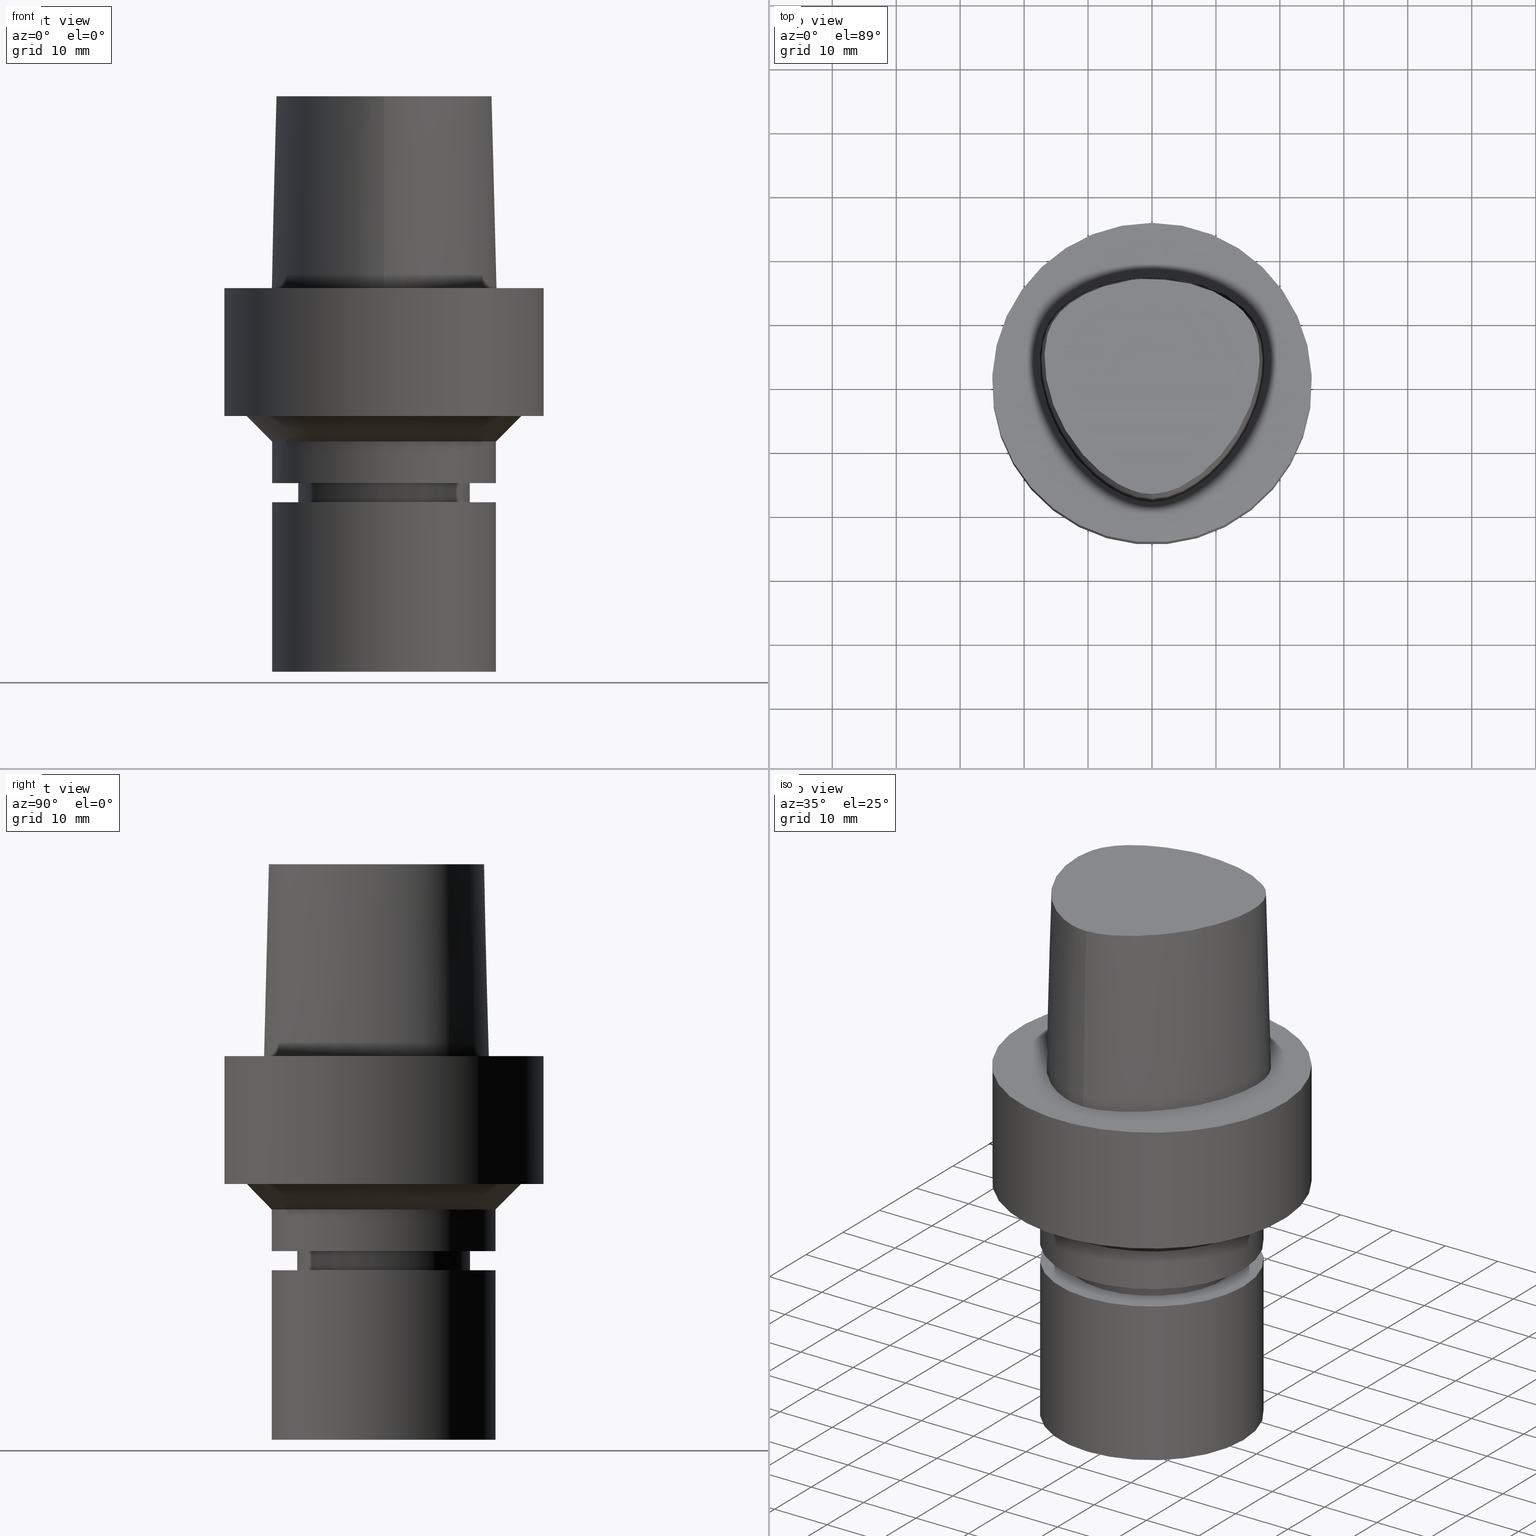
[diagram: canonical four-view strip — front | top / right | iso, engineering-drawing reading convention]
A machine part, canonical four-view strip (front | top / right | iso — engineering-drawing reading convention). The complete STEP part file that produces these views, byte-faithful:
ISO-10303-21;
HEADER;
FILE_DESCRIPTION((''),'1');
FILE_NAME('V:/90_\X2\53D65F9730C730FC30BF\X0\/00_\X2\6DE18DEF30C730FC30BF\X0\/ALL/CAPTO-BKUS\X2\52A05DE556F3\X0\_201801/C5-MEGAER/C5-MEGAER20-60NL.stp','2018-02-01T06:23:38',(''),(''),'Spatial Interop R21 SP3','Kubotek KeyCreator 2011 V10.0.2 (22737)',' ');
FILE_SCHEMA(('automotive_design'));
ENDSEC;
DATA;
#1=MECHANICAL_DESIGN_GEOMETRIC_PRESENTATION_REPRESENTATION(' ',(#14,#15,#16,#17,#18,#19,#20,#21,#22,#23,#24,#25,#26,#27,#28,#29,#30,#31,#32,#33,#34,#35,#36,#37,#38,#39,#40,#41,#42,#43,#44,#45,#46),#10);
#2=PRODUCT_DEFINITION_CONTEXT('',#47,'design');
#3=APPLICATION_PROTOCOL_DEFINITION('INTERNATIONAL STANDARD','automotive_design',1994,#47);
#4=PRODUCT_CATEGORY_RELATIONSHIP('NONE','NONE',#48,#49);
#5=SHAPE_DEFINITION_REPRESENTATION(#50,#51);
#6=PRODUCT_DEFINITION_CONTEXT('',#52,'design');
#7=APPLICATION_PROTOCOL_DEFINITION('INTERNATIONAL STANDARD','automotive_design',1994,#52);
#8=PRODUCT_CATEGORY_RELATIONSHIP('NONE','NONE',#53,#54);
#9=SHAPE_DEFINITION_REPRESENTATION(#55,#56);
#10= (GEOMETRIC_REPRESENTATION_CONTEXT(3)GLOBAL_UNCERTAINTY_ASSIGNED_CONTEXT((#59))GLOBAL_UNIT_ASSIGNED_CONTEXT((#61,#62,#63))REPRESENTATION_CONTEXT('NONE','WORKSPACE'));
#14=STYLED_ITEM('',(#65,#66),#67);
#15=STYLED_ITEM('',(#68,#69),#70);
#16=STYLED_ITEM('',(#71,#72),#73);
#17=STYLED_ITEM('',(#74,#75),#76);
#18=STYLED_ITEM('',(#77),#78);
#19=STYLED_ITEM('',(#79,#80),#81);
#20=STYLED_ITEM('',(#82,#83),#84);
#21=STYLED_ITEM('',(#85,#86),#87);
#22=STYLED_ITEM('',(#88,#89),#90);
#23=STYLED_ITEM('',(#91,#92),#93);
#24=STYLED_ITEM('',(#94),#95);
#25=STYLED_ITEM('',(#96,#97),#98);
#26=STYLED_ITEM('',(#99,#100),#101);
#27=STYLED_ITEM('',(#102,#103),#104);
#28=STYLED_ITEM('',(#105),#106);
#29=STYLED_ITEM('',(#107),#108);
#30=STYLED_ITEM('',(#109,#110),#111);
#31=STYLED_ITEM('',(#112,#113),#114);
#32=STYLED_ITEM('',(#115),#116);
#33=STYLED_ITEM('',(#117,#118),#119);
#34=STYLED_ITEM('',(#120),#121);
#35=STYLED_ITEM('',(#122),#123);
#36=STYLED_ITEM('',(#124),#125);
#37=STYLED_ITEM('',(#126),#127);
#38=STYLED_ITEM('',(#128),#129);
#39=STYLED_ITEM('',(#130,#131),#132);
#40=STYLED_ITEM('',(#133,#134),#135);
#41=STYLED_ITEM('',(#136),#137);
#42=STYLED_ITEM('',(#138),#139);
#43=STYLED_ITEM('',(#140),#141);
#44=STYLED_ITEM('',(#142,#143),#144);
#45=STYLED_ITEM('',(#145),#146);
#46=STYLED_ITEM('',(#147),#148);
#47=APPLICATION_CONTEXT(' ');
#48=PRODUCT_CATEGORY('part','NONE');
#49=PRODUCT_RELATED_PRODUCT_CATEGORY('detail',' ',(#149));
#50=PRODUCT_DEFINITION_SHAPE('NONE','NONE',#150);
#51=ADVANCED_BREP_SHAPE_REPRESENTATION('Unnamed[1]',(#144,#151),#10);
#52=APPLICATION_CONTEXT(' ');
#53=PRODUCT_CATEGORY('part','NONE');
#54=PRODUCT_RELATED_PRODUCT_CATEGORY('detail',' ',(#152));
#55=PRODUCT_DEFINITION_SHAPE('NONE','NONE',#153);
#56=ADVANCED_BREP_SHAPE_REPRESENTATION('Unnamed[1]',(#67,#154),#10);
#59=UNCERTAINTY_MEASURE_WITH_UNIT(LENGTH_MEASURE(1.0E-006),#61,'','');
#61= (CONVERSION_BASED_UNIT('MILLIMETRE',#157)LENGTH_UNIT()NAMED_UNIT(#160));
#62= (NAMED_UNIT(#162)PLANE_ANGLE_UNIT()SI_UNIT($,.RADIAN.));
#63= (NAMED_UNIT(#162)SOLID_ANGLE_UNIT()SI_UNIT($,.STERADIAN.));
#65=PRESENTATION_STYLE_ASSIGNMENT((#168));
#66=PRESENTATION_STYLE_ASSIGNMENT((#169));
#67=MANIFOLD_SOLID_BREP('Unnamed[1]',#170);
#68=PRESENTATION_STYLE_ASSIGNMENT((#171));
#69=PRESENTATION_STYLE_ASSIGNMENT((#172));
#70=ADVANCED_FACE('Unnamed[1]',(#173),#174,.T.);
#71=PRESENTATION_STYLE_ASSIGNMENT((#175));
#72=PRESENTATION_STYLE_ASSIGNMENT((#176));
#73=ADVANCED_FACE('Unnamed[1]',(#177,#178),#179,.T.);
#74=PRESENTATION_STYLE_ASSIGNMENT((#180));
#75=PRESENTATION_STYLE_ASSIGNMENT((#181));
#76=ADVANCED_FACE('Unnamed[1]',(#182,#183),#184,.T.);
#77=PRESENTATION_STYLE_ASSIGNMENT((#185));
#78=EDGE_CURVE('Unnamed[1]',#186,#186,#187,.T.);
#79=PRESENTATION_STYLE_ASSIGNMENT((#188));
#80=PRESENTATION_STYLE_ASSIGNMENT((#189));
#81=ADVANCED_FACE('Unnamed[1]',(#190,#191),#192,.T.);
#82=PRESENTATION_STYLE_ASSIGNMENT((#193));
#83=PRESENTATION_STYLE_ASSIGNMENT((#194));
#84=ADVANCED_FACE('Unnamed[1]',(#195,#196),#197,.T.);
#85=PRESENTATION_STYLE_ASSIGNMENT((#198));
#86=PRESENTATION_STYLE_ASSIGNMENT((#199));
#87=ADVANCED_FACE('Unnamed[1]',(#200,#201),#202,.T.);
#88=PRESENTATION_STYLE_ASSIGNMENT((#203));
#89=PRESENTATION_STYLE_ASSIGNMENT((#204));
#90=ADVANCED_FACE('Unnamed[1]',(#205,#206),#207,.T.);
#91=PRESENTATION_STYLE_ASSIGNMENT((#208));
#92=PRESENTATION_STYLE_ASSIGNMENT((#209));
#93=ADVANCED_FACE('Unnamed[1]',(#210),#211,.T.);
#94=PRESENTATION_STYLE_ASSIGNMENT((#212));
#95=EDGE_CURVE('Unnamed[1]',#213,#213,#214,.T.);
#96=PRESENTATION_STYLE_ASSIGNMENT((#215));
#97=PRESENTATION_STYLE_ASSIGNMENT((#216));
#98=ADVANCED_FACE('Unnamed[1]',(#217,#218),#219,.T.);
#99=PRESENTATION_STYLE_ASSIGNMENT((#220));
#100=PRESENTATION_STYLE_ASSIGNMENT((#221));
#101=ADVANCED_FACE('Unnamed[1]',(#222,#223),#224,.T.);
#102=PRESENTATION_STYLE_ASSIGNMENT((#225));
#103=PRESENTATION_STYLE_ASSIGNMENT((#226));
#104=ADVANCED_FACE('Unnamed[1]',(#227,#228),#229,.T.);
#105=PRESENTATION_STYLE_ASSIGNMENT((#230));
#106=EDGE_CURVE('Unnamed[1]',#231,#231,#232,.T.);
#107=PRESENTATION_STYLE_ASSIGNMENT((#233));
#108=EDGE_CURVE('Unnamed[1]',#234,#234,#235,.T.);
#109=PRESENTATION_STYLE_ASSIGNMENT((#236));
#110=PRESENTATION_STYLE_ASSIGNMENT((#237));
#111=ADVANCED_FACE('Unnamed[1]',(#238,#239),#240,.T.);
#112=PRESENTATION_STYLE_ASSIGNMENT((#241));
#113=PRESENTATION_STYLE_ASSIGNMENT((#242));
#114=ADVANCED_FACE('Unnamed[1]',(#243),#244,.T.);
#115=PRESENTATION_STYLE_ASSIGNMENT((#245));
#116=EDGE_CURVE('Unnamed[1]',#246,#246,#247,.T.);
#117=PRESENTATION_STYLE_ASSIGNMENT((#248));
#118=PRESENTATION_STYLE_ASSIGNMENT((#249));
#119=ADVANCED_FACE('Unnamed[1]',(#250),#251,.F.);
#120=PRESENTATION_STYLE_ASSIGNMENT((#252));
#121=EDGE_CURVE('Unnamed[1]',#253,#253,#254,.T.);
#122=PRESENTATION_STYLE_ASSIGNMENT((#255));
#123=EDGE_CURVE('Unnamed[1]',#256,#256,#257,.T.);
#124=PRESENTATION_STYLE_ASSIGNMENT((#258));
#125=EDGE_CURVE('Unnamed[1]',#259,#259,#260,.T.);
#126=PRESENTATION_STYLE_ASSIGNMENT((#261));
#127=EDGE_CURVE('Unnamed[1]',#262,#262,#263,.T.);
#128=PRESENTATION_STYLE_ASSIGNMENT((#264));
#129=EDGE_CURVE('Unnamed[1]',#253,#213,#265,.T.);
#130=PRESENTATION_STYLE_ASSIGNMENT((#266));
#131=PRESENTATION_STYLE_ASSIGNMENT((#267));
#132=ADVANCED_FACE('Unnamed[1]',(#268),#269,.T.);
#133=PRESENTATION_STYLE_ASSIGNMENT((#270));
#134=PRESENTATION_STYLE_ASSIGNMENT((#271));
#135=ADVANCED_FACE('Unnamed[1]',(#272,#273),#274,.T.);
#136=PRESENTATION_STYLE_ASSIGNMENT((#275));
#137=EDGE_CURVE('Unnamed[1]',#276,#276,#277,.T.);
#138=PRESENTATION_STYLE_ASSIGNMENT((#278));
#139=EDGE_CURVE('Unnamed[1]',#279,#279,#280,.T.);
#140=PRESENTATION_STYLE_ASSIGNMENT((#281));
#141=EDGE_CURVE('Unnamed[1]',#282,#282,#283,.T.);
#142=PRESENTATION_STYLE_ASSIGNMENT((#284));
#143=PRESENTATION_STYLE_ASSIGNMENT((#285));
#144=MANIFOLD_SOLID_BREP('Unnamed[1]',#286);
#145=PRESENTATION_STYLE_ASSIGNMENT((#287));
#146=EDGE_CURVE('Unnamed[1]',#288,#288,#289,.T.);
#147=PRESENTATION_STYLE_ASSIGNMENT((#290));
#148=EDGE_CURVE('Unnamed[1]',#291,#291,#292,.T.);
#149=PRODUCT('Unnamed[1]','Unnamed[1]','PART-Unnamed[1]-DESC',(#293));
#150=PRODUCT_DEFINITION('NONE','NONE',#294,#2);
#151=AXIS2_PLACEMENT_3D('',#295,#296,#297);
#152=PRODUCT('Unnamed[1]','Unnamed[1]','PART-Unnamed[1]-DESC',(#298));
#153=PRODUCT_DEFINITION('NONE','NONE',#299,#6);
#154=AXIS2_PLACEMENT_3D('',#300,#301,#302);
#157=LENGTH_MEASURE_WITH_UNIT(LENGTH_MEASURE(1.0),#303);
#160=DIMENSIONAL_EXPONENTS(1.0,0.0,0.0,0.0,0.0,0.0,0.0);
#162=DIMENSIONAL_EXPONENTS(0.0,0.0,0.0,0.0,0.0,0.0,0.0);
#168=SURFACE_STYLE_USAGE(.BOTH.,#304);
#169=CURVE_STYLE('',#305,POSITIVE_LENGTH_MEASURE(1000.0),#306);
#170=CLOSED_SHELL('',(#93,#132,#111));
#171=SURFACE_STYLE_USAGE(.BOTH.,#307);
#172=CURVE_STYLE('',#308,POSITIVE_LENGTH_MEASURE(1000.0),#309);
#173=FACE_OUTER_BOUND('',#310,.T.);
#174=PLANE('',#311);
#175=SURFACE_STYLE_USAGE(.BOTH.,#312);
#176=CURVE_STYLE('',#313,POSITIVE_LENGTH_MEASURE(1000.0),#314);
#177=FACE_BOUND('',#315,.T.);
#178=FACE_OUTER_BOUND('',#316,.T.);
#179=PLANE('',#317);
#180=SURFACE_STYLE_USAGE(.BOTH.,#318);
#181=CURVE_STYLE('',#319,POSITIVE_LENGTH_MEASURE(1000.0),#320);
#182=FACE_BOUND('',#321,.T.);
#183=FACE_BOUND('',#322,.T.);
#184=CONICAL_SURFACE('',#323,11.9499999999988,0.523598775598664);
#185=CURVE_STYLE('',#324,POSITIVE_LENGTH_MEASURE(1000.0),#325);
#186=VERTEX_POINT('',#326);
#187=CIRCLE('',#327,13.4999999999908);
#188=SURFACE_STYLE_USAGE(.BOTH.,#328);
#189=CURVE_STYLE('',#329,POSITIVE_LENGTH_MEASURE(1000.0),#330);
#190=FACE_BOUND('',#331,.T.);
#191=FACE_BOUND('',#332,.T.);
#192=CYLINDRICAL_SURFACE('',#333,13.4999999999956);
#193=SURFACE_STYLE_USAGE(.BOTH.,#334);
#194=CURVE_STYLE('',#335,POSITIVE_LENGTH_MEASURE(1000.0),#336);
#195=FACE_BOUND('',#337,.T.);
#196=FACE_BOUND('',#338,.T.);
#197=CONICAL_SURFACE('',#339,19.4999999999997,0.78539816339735);
#198=SURFACE_STYLE_USAGE(.BOTH.,#340);
#199=CURVE_STYLE('',#341,POSITIVE_LENGTH_MEASURE(1000.0),#342);
#200=FACE_BOUND('',#343,.T.);
#201=FACE_OUTER_BOUND('',#344,.T.);
#202=PLANE('',#345);
#203=SURFACE_STYLE_USAGE(.BOTH.,#346);
#204=CURVE_STYLE('',#347,POSITIVE_LENGTH_MEASURE(1000.0),#348);
#205=FACE_BOUND('',#349,.T.);
#206=FACE_BOUND('',#350,.T.);
#207=CYLINDRICAL_SURFACE('',#351,12.4999999999999);
#208=SURFACE_STYLE_USAGE(.BOTH.,#352);
#209=CURVE_STYLE('',#353,POSITIVE_LENGTH_MEASURE(1000.0),#354);
#210=FACE_OUTER_BOUND('',#355,.T.);
#211=PLANE('',#356);
#212=CURVE_STYLE('',#357,POSITIVE_LENGTH_MEASURE(1000.0),#358);
#213=VERTEX_POINT('',#359);
#214=B_SPLINE_CURVE_WITH_KNOTS('',3,(#360,#361,#362,#363,#364,#365,#366,#367,#368,#369,#370,#371,#372,#373,#374,#375,#376,#377,#378,#379,#380,#381,#382,#383,#384,#385,#386,#387,#388,#389,#390,#391,#392,#393,#394,#395,#396,#397,#398,#399,#400,#401,#402,#403,#404,#405,#406,#407,#408),.UNSPECIFIED.,.T.,.F.,(4,1,1,1,1,1,1,1,1,1,1,1,1,1,1,1,1,1,1,1,1,1,1,1,1,1,1,1,1,1,1,1,1,1,1,1,1,1,1,1,1,1,1,1,1,1,4),(0.0,0.023135829350767,0.046149078767971,0.068686553945372,0.09058948843834,0.11187442371895,0.132659030725504,0.153111474090064,0.173428097006866,0.193812703683075,0.214465113334926,0.235566638619369,0.257256396596226,0.279590584305387,0.302476275092963,0.325611612149197,0.348735785989546,0.371826971229282,0.39455923139207,0.416669726533691,0.438154204641074,0.459103554741756,0.479643077908811,0.50010643098029,0.520399705216369,0.54092682403315,0.561890845659905,0.583370991138857,0.605476574502583,0.62820876493626,0.65131550684809,0.674427687768046,0.697531018602722,0.720425222070344,0.742763449220249,0.764449723968905,0.785551037463572,0.806204240231889,0.826588983931571,0.846905402970388,0.867357715119018,0.88814171778586,0.909429413217286,0.931324749020081,0.953885589892717,0.976862732393428,1.0),.UNSPECIFIED.);
#215=SURFACE_STYLE_USAGE(.BOTH.,#409);
#216=CURVE_STYLE('',#410,POSITIVE_LENGTH_MEASURE(1000.0),#411);
#217=FACE_BOUND('',#412,.T.);
#218=FACE_BOUND('',#413,.T.);
#219=CYLINDRICAL_SURFACE('',#414,25.0);
#220=SURFACE_STYLE_USAGE(.BOTH.,#415);
#221=CURVE_STYLE('',#416,POSITIVE_LENGTH_MEASURE(1000.0),#417);
#222=FACE_BOUND('',#418,.T.);
#223=FACE_OUTER_BOUND('',#419,.T.);
#224=PLANE('',#420);
#225=SURFACE_STYLE_USAGE(.BOTH.,#421);
#226=CURVE_STYLE('',#422,POSITIVE_LENGTH_MEASURE(1000.0),#423);
#227=FACE_BOUND('',#424,.T.);
#228=FACE_BOUND('',#425,.T.);
#229=CONICAL_SURFACE('',#426,13.0000000000002,1.04719755119485);
#230=CURVE_STYLE('',#427,POSITIVE_LENGTH_MEASURE(1000.0),#428);
#231=VERTEX_POINT('',#429);
#232=CIRCLE('',#430,25.0);
#233=CURVE_STYLE('',#431,POSITIVE_LENGTH_MEASURE(1000.0),#432);
#234=VERTEX_POINT('',#433);
#235=CIRCLE('',#434,13.5000000000005);
#236=SURFACE_STYLE_USAGE(.BOTH.,#435);
#237=CURVE_STYLE('',#436,POSITIVE_LENGTH_MEASURE(1000.0),#437);
#238=FACE_BOUND('',#438,.T.);
#239=FACE_BOUND('',#439,.T.);
#240=CYLINDRICAL_SURFACE('',#440,17.5);
#241=SURFACE_STYLE_USAGE(.BOTH.,#441);
#242=CURVE_STYLE('',#442,POSITIVE_LENGTH_MEASURE(1000.0),#443);
#243=FACE_OUTER_BOUND('',#444,.T.);
#244=PLANE('',#445);
#245=CURVE_STYLE('',#446,POSITIVE_LENGTH_MEASURE(1000.0),#447);
#246=VERTEX_POINT('',#448);
#247=CIRCLE('',#449,17.5);
#248=SURFACE_STYLE_USAGE(.BOTH.,#450);
#249=CURVE_STYLE('',#451,POSITIVE_LENGTH_MEASURE(1000.0),#452);
#250=FACE_OUTER_BOUND('',#453,.T.);
#251=B_SPLINE_SURFACE_WITH_KNOTS('',3,3,((#454,#455,#456,#457),(#458,#459,#460,#461),(#462,#463,#464,#465),(#466,#467,#468,#469),(#470,#471,#472,#473),(#474,#475,#476,#477),(#478,#479,#480,#481),(#482,#483,#484,#485),(#486,#487,#488,#489),(#490,#491,#492,#493),(#494,#495,#496,#497),(#498,#499,#500,#501),(#502,#503,#504,#505),(#506,#507,#508,#509),(#510,#511,#512,#513),(#514,#515,#516,#517),(#518,#519,#520,#521),(#522,#523,#524,#525),(#526,#527,#528,#529),(#530,#531,#532,#533),(#534,#535,#536,#537),(#538,#539,#540,#541),(#542,#543,#544,#545),(#546,#547,#548,#549),(#550,#551,#552,#553),(#554,#555,#556,#557),(#558,#559,#560,#561),(#562,#563,#564,#565),(#566,#567,#568,#569),(#570,#571,#572,#573),(#574,#575,#576,#577),(#578,#579,#580,#581),(#582,#583,#584,#585),(#586,#587,#588,#589),(#590,#591,#592,#593),(#594,#595,#596,#597),(#598,#599,#600,#601),(#602,#603,#604,#605),(#606,#607,#608,#609),(#610,#611,#612,#613),(#614,#615,#616,#617),(#618,#619,#620,#621),(#622,#623,#624,#625),(#626,#627,#628,#629),(#630,#631,#632,#633),(#634,#635,#636,#637),(#638,#639,#640,#641),(#642,#643,#644,#645),(#646,#647,#648,#649),(#650,#651,#652,#653),(#654,#655,#656,#657),(#658,#659,#660,#661),(#662,#663,#664,#665),(#666,#667,#668,#669),(#670,#671,#672,#673),(#674,#675,#676,#677),(#678,#679,#680,#681),(#682,#683,#684,#685),(#686,#687,#688,#689),(#690,#691,#692,#693),(#694,#695,#696,#697),(#698,#699,#700,#701),(#702,#703,#704,#705),(#706,#707,#708,#709),(#710,#711,#712,#713),(#714,#715,#716,#717),(#718,#719,#720,#721),(#722,#723,#724,#725),(#726,#727,#728,#729),(#730,#731,#732,#733),(#734,#735,#736,#737),(#738,#739,#740,#741),(#742,#743,#744,#745),(#746,#747,#748,#749),(#750,#751,#752,#753),(#754,#755,#756,#757),(#758,#759,#760,#761),(#762,#763,#764,#765),(#766,#767,#768,#769),(#770,#771,#772,#773),(#774,#775,#776,#777),(#778,#779,#780,#781),(#782,#783,#784,#785),(#786,#787,#788,#789),(#790,#791,#792,#793),(#794,#795,#796,#797),(#798,#799,#800,#801),(#802,#803,#804,#805),(#806,#807,#808,#809),(#810,#811,#812,#813),(#814,#815,#816,#817),(#818,#819,#820,#821),(#822,#823,#824,#825),(#826,#827,#828,#829),(#830,#831,#832,#833),(#834,#835,#836,#837)),.UNSPECIFIED.,.T.,.F.,.F.,(4,2,2,2,2,2,2,2,2,2,2,2,2,2,2,2,2,2,2,2,2,2,2,2,2,2,2,2,2,2,2,2,2,2,2,2,2,2,2,2,2,2,2,2,2,2,2,4),(4,4),(0.0,0.000251979175567,0.023135829350767,0.046149078767971,0.068686553945372,0.09058948843834,0.11187442371895,0.132659030725504,0.153111474090064,0.173428097006866,0.193812703683075,0.214465113334926,0.235566638619369,0.257256396596226,0.279590584305387,0.302476275092963,0.325611612149197,0.348735785989546,0.371826971229282,0.39455923139207,0.416669726533691,0.438154204641074,0.459103554741756,0.479643077908811,0.50010643098029,0.520399705216369,0.54092682403315,0.561890845659905,0.583370991138857,0.605476574502583,0.62820876493626,0.65131550684809,0.674427687768046,0.697531018602722,0.720425222070344,0.742763449220249,0.764449723968905,0.785551037463572,0.806204240231889,0.826588983931571,0.846905402970388,0.867357715119018,0.88814171778586,0.909429413217286,0.931324749020081,0.953885589892717,0.976862732393428,1.0),(0.0,1.0),.UNSPECIFIED.);
#252=CURVE_STYLE('',#838,POSITIVE_LENGTH_MEASURE(1000.0),#839);
#253=VERTEX_POINT('',#840);
#254=B_SPLINE_CURVE_WITH_KNOTS('',3,(#841,#842,#843,#844,#845,#846,#847,#848,#849,#850,#851,#852,#853,#854,#855,#856,#857,#858,#859,#860,#861,#862,#863,#864,#865,#866,#867,#868,#869,#870,#871,#872,#873,#874,#875,#876,#877,#878,#879,#880,#881,#882,#883,#884,#885,#886,#887,#888,#889,#890,#891,#892,#893,#894,#895,#896,#897,#898,#899,#900,#901,#902,#903,#904,#905,#906,#907,#908,#909,#910,#911,#912,#913,#914,#915,#916,#917,#918,#919,#920,#921,#922,#923,#924,#925,#926,#927,#928,#929,#930,#931,#932,#933,#934,#935,#936),.UNSPECIFIED.,.T.,.F.,(4,2,2,2,2,2,2,2,2,2,2,2,2,2,2,2,2,2,2,2,2,2,2,2,2,2,2,2,2,2,2,2,2,2,2,2,2,2,2,2,2,2,2,2,2,2,2,4),(0.0,0.000251979175567,0.023135829350767,0.046149078767971,0.068686553945372,0.09058948843834,0.11187442371895,0.132659030725504,0.153111474090064,0.173428097006866,0.193812703683075,0.214465113334926,0.235566638619369,0.257256396596226,0.279590584305387,0.302476275092963,0.325611612149197,0.348735785989546,0.371826971229282,0.39455923139207,0.416669726533691,0.438154204641074,0.459103554741756,0.479643077908811,0.50010643098029,0.520399705216369,0.54092682403315,0.561890845659905,0.583370991138857,0.605476574502583,0.62820876493626,0.65131550684809,0.674427687768046,0.697531018602722,0.720425222070344,0.742763449220249,0.764449723968905,0.785551037463572,0.806204240231889,0.826588983931571,0.846905402970388,0.867357715119018,0.88814171778586,0.909429413217286,0.931324749020081,0.953885589892717,0.976862732393428,1.0),.UNSPECIFIED.);
#255=CURVE_STYLE('',#937,POSITIVE_LENGTH_MEASURE(1000.0),#938);
#256=VERTEX_POINT('',#939);
#257=CIRCLE('',#940,11.3999999999977);
#258=CURVE_STYLE('',#941,POSITIVE_LENGTH_MEASURE(1000.0),#942);
#259=VERTEX_POINT('',#943);
#260=CIRCLE('',#944,17.5);
#261=CURVE_STYLE('',#945,POSITIVE_LENGTH_MEASURE(1000.0),#946);
#262=VERTEX_POINT('',#947);
#263=CIRCLE('',#948,21.4999999999997);
#264=CURVE_STYLE('',#949,POSITIVE_LENGTH_MEASURE(1000.0),#950);
#265=B_SPLINE_CURVE_WITH_KNOTS('',3,(#951,#952,#953,#954),.UNSPECIFIED.,.F.,.F.,(4,4),(0.0,1.0),.UNSPECIFIED.);
#266=SURFACE_STYLE_USAGE(.BOTH.,#955);
#267=CURVE_STYLE('',#956,POSITIVE_LENGTH_MEASURE(1000.0),#957);
#268=FACE_OUTER_BOUND('',#958,.T.);
#269=PLANE('',#959);
#270=SURFACE_STYLE_USAGE(.BOTH.,#960);
#271=CURVE_STYLE('',#961,POSITIVE_LENGTH_MEASURE(1000.0),#962);
#272=FACE_BOUND('',#963,.T.);
#273=FACE_BOUND('',#964,.T.);
#274=CYLINDRICAL_SURFACE('',#965,17.4999999999998);
#275=CURVE_STYLE('',#966,POSITIVE_LENGTH_MEASURE(1000.0),#967);
#276=VERTEX_POINT('',#968);
#277=CIRCLE('',#969,25.0);
#278=CURVE_STYLE('',#970,POSITIVE_LENGTH_MEASURE(1000.0),#971);
#279=VERTEX_POINT('',#972);
#280=CIRCLE('',#973,17.4999999999996);
#281=CURVE_STYLE('',#974,POSITIVE_LENGTH_MEASURE(1000.0),#975);
#282=VERTEX_POINT('',#976);
#283=CIRCLE('',#977,12.4999999999998);
#284=SURFACE_STYLE_USAGE(.BOTH.,#978);
#285=CURVE_STYLE('',#979,POSITIVE_LENGTH_MEASURE(1000.0),#980);
#286=CLOSED_SHELL('',(#70,#119,#73,#98,#87,#84,#135,#101,#81,#104,#90,#76,#114));
#287=CURVE_STYLE('',#981,POSITIVE_LENGTH_MEASURE(1000.0),#982);
#288=VERTEX_POINT('',#983);
#289=CIRCLE('',#984,17.5);
#290=CURVE_STYLE('',#985,POSITIVE_LENGTH_MEASURE(1000.0),#986);
#291=VERTEX_POINT('',#987);
#292=CIRCLE('',#988,12.4999999999999);
#293=PRODUCT_CONTEXT('',#47,'mechanical');
#294=PRODUCT_DEFINITION_FORMATION_WITH_SPECIFIED_SOURCE(' ','NONE',#149,.NOT_KNOWN.);
#295=CARTESIAN_POINT('',(0.0,0.0,0.0));
#296=DIRECTION('',(0.0,0.0,1.0));
#297=DIRECTION('',(1.0,0.0,0.0));
#298=PRODUCT_CONTEXT('',#52,'mechanical');
#299=PRODUCT_DEFINITION_FORMATION_WITH_SPECIFIED_SOURCE(' ','NONE',#152,.NOT_KNOWN.);
#300=CARTESIAN_POINT('',(0.0,0.0,0.0));
#301=DIRECTION('',(0.0,0.0,1.0));
#302=DIRECTION('',(1.0,0.0,0.0));
#303= (NAMED_UNIT(#160)LENGTH_UNIT()SI_UNIT(.MILLI.,.METRE.));
#304=SURFACE_SIDE_STYLE('',(#990));
#305=DRAUGHTING_PRE_DEFINED_CURVE_FONT('continuous');
#306=COLOUR_RGB('',0.0,1.0,0.0);
#307=SURFACE_SIDE_STYLE('',(#991));
#308=DRAUGHTING_PRE_DEFINED_CURVE_FONT('continuous');
#309=COLOUR_RGB('',0.0,1.0,0.0);
#310=EDGE_LOOP('',(#992));
#311=AXIS2_PLACEMENT_3D('',#993,#994,#995);
#312=SURFACE_SIDE_STYLE('',(#996));
#313=DRAUGHTING_PRE_DEFINED_CURVE_FONT('continuous');
#314=COLOUR_RGB('',0.0,1.0,0.0);
#315=EDGE_LOOP('',(#997));
#316=EDGE_LOOP('',(#998));
#317=AXIS2_PLACEMENT_3D('',#999,#1000,#1001);
#318=SURFACE_SIDE_STYLE('',(#1002));
#319=DRAUGHTING_PRE_DEFINED_CURVE_FONT('continuous');
#320=COLOUR_RGB('',0.0,1.0,0.0);
#321=EDGE_LOOP('',(#1003));
#322=EDGE_LOOP('',(#1004));
#323=AXIS2_PLACEMENT_3D('',#1005,#1006,#1007);
#324=DRAUGHTING_PRE_DEFINED_CURVE_FONT('continuous');
#325=COLOUR_RGB('',0.0,1.0,0.0);
#326=CARTESIAN_POINT('',(1.8675863686997E-015,13.4999999999908,-30.4999999999998));
#327=AXIS2_PLACEMENT_3D('',#1008,#1009,#1010);
#328=SURFACE_SIDE_STYLE('',(#1011));
#329=DRAUGHTING_PRE_DEFINED_CURVE_FONT('continuous');
#330=COLOUR_RGB('',0.0,1.0,0.0);
#331=EDGE_LOOP('',(#1012));
#332=EDGE_LOOP('',(#1013));
#333=AXIS2_PLACEMENT_3D('',#1014,#1015,#1016);
#334=SURFACE_SIDE_STYLE('',(#1017));
#335=DRAUGHTING_PRE_DEFINED_CURVE_FONT('continuous');
#336=COLOUR_RGB('',0.0,1.0,0.0);
#337=EDGE_LOOP('',(#1018));
#338=EDGE_LOOP('',(#1019));
#339=AXIS2_PLACEMENT_3D('',#1020,#1021,#1022);
#340=SURFACE_SIDE_STYLE('',(#1023));
#341=DRAUGHTING_PRE_DEFINED_CURVE_FONT('continuous');
#342=COLOUR_RGB('',0.0,1.0,0.0);
#343=EDGE_LOOP('',(#1024));
#344=EDGE_LOOP('',(#1025));
#345=AXIS2_PLACEMENT_3D('',#1026,#1027,#1028);
#346=SURFACE_SIDE_STYLE('',(#1029));
#347=DRAUGHTING_PRE_DEFINED_CURVE_FONT('continuous');
#348=COLOUR_RGB('',0.0,1.0,0.0);
#349=EDGE_LOOP('',(#1030));
#350=EDGE_LOOP('',(#1031));
#351=AXIS2_PLACEMENT_3D('',#1032,#1033,#1034);
#352=SURFACE_SIDE_STYLE('',(#1035));
#353=DRAUGHTING_PRE_DEFINED_CURVE_FONT('continuous');
#354=COLOUR_RGB('',0.0,1.0,0.0);
#355=EDGE_LOOP('',(#1036));
#356=AXIS2_PLACEMENT_3D('',#1037,#1038,#1039);
#357=DRAUGHTING_PRE_DEFINED_CURVE_FONT('continuous');
#358=COLOUR_RGB('',0.0,1.0,0.0);
#359=CARTESIAN_POINT('',(-2.78602932413959E-015,-17.9423775546504,30.0));
#360=CARTESIAN_POINT('',(-2.78602932413959E-015,-17.9423775546504,30.0));
#361=CARTESIAN_POINT('',(-0.814120797978075,-17.9643878187761,30.0));
#362=CARTESIAN_POINT('',(-2.44279318309434,-17.6670056599032,30.0));
#363=CARTESIAN_POINT('',(-4.69065600148019,-16.7591312239375,30.0));
#364=CARTESIAN_POINT('',(-6.73157621234646,-15.527654017863,30.0));
#365=CARTESIAN_POINT('',(-8.55606567082544,-14.0980586872352,30.0));
#366=CARTESIAN_POINT('',(-10.1771160862307,-12.5294920614813,30.0));
#367=CARTESIAN_POINT('',(-11.6098311271326,-10.8549672983455,30.0));
#368=CARTESIAN_POINT('',(-12.8723444784573,-9.09084166630711,30.0));
#369=CARTESIAN_POINT('',(-13.9762474627415,-7.23982146073079,30.0));
#370=CARTESIAN_POINT('',(-14.9241349859217,-5.29636298798721,30.0));
#371=CARTESIAN_POINT('',(-15.7132736469777,-3.2533357158659,30.0));
#372=CARTESIAN_POINT('',(-16.3266313043064,-1.10238675181427,30.0));
#373=CARTESIAN_POINT('',(-16.7327867713303,1.15808256309649,30.0));
#374=CARTESIAN_POINT('',(-16.8801613787167,3.51564121263174,30.0));
#375=CARTESIAN_POINT('',(-16.6855836228514,5.92229128835704,30.0));
#376=CARTESIAN_POINT('',(-16.0281509658443,8.29517868854449,30.0));
#377=CARTESIAN_POINT('',(-14.6640408300166,10.3669104243273,30.0));
#378=CARTESIAN_POINT('',(-12.8332969997264,11.9882678763451,30.0));
#379=CARTESIAN_POINT('',(-10.7856401290832,13.2404482750702,30.0));
#380=CARTESIAN_POINT('',(-8.65298741417579,14.19764142693,30.0));
#381=CARTESIAN_POINT('',(-6.48957622042645,14.9235651413533,30.0));
#382=CARTESIAN_POINT('',(-4.30784954842127,15.2925809723717,30.0));
#383=CARTESIAN_POINT('',(-2.16867899857279,15.8525920055235,30.0));
#384=CARTESIAN_POINT('',(-0.0054980597270801,15.506533819507,30.0));
#385=CARTESIAN_POINT('',(2.15423811148254,15.6758925558313,30.0));
#386=CARTESIAN_POINT('',(4.31367631773855,15.3366483013887,30.0));
#387=CARTESIAN_POINT('',(6.49156913463884,14.9221231752341,30.0));
#388=CARTESIAN_POINT('',(8.65317555043793,14.199841033848,30.0));
#389=CARTESIAN_POINT('',(10.7855591317115,13.2388028674922,30.0));
#390=CARTESIAN_POINT('',(12.8289446834375,11.9844078416963,30.0));
#391=CARTESIAN_POINT('',(14.6809214389867,10.37934328945,30.0));
#392=CARTESIAN_POINT('',(15.9964040236072,8.28000660116028,30.0));
#393=CARTESIAN_POINT('',(16.6999197177274,5.92601467018833,30.0));
#394=CARTESIAN_POINT('',(16.8785470495877,3.51485696104406,30.0));
#395=CARTESIAN_POINT('',(16.7308989568545,1.15864914401017,30.0));
#396=CARTESIAN_POINT('',(16.3270119409732,-1.10262794482627,30.0));
#397=CARTESIAN_POINT('',(15.7138840293007,-3.25349612648562,30.0));
#398=CARTESIAN_POINT('',(14.9244427410538,-5.29647704660135,30.0));
#399=CARTESIAN_POINT('',(13.9756636589241,-7.23950698099948,30.0));
#400=CARTESIAN_POINT('',(12.8724663956831,-9.09088034657936,30.0));
#401=CARTESIAN_POINT('',(11.6099597844916,-10.8551381410581,30.0));
#402=CARTESIAN_POINT('',(10.1759690661341,-12.5282962499649,30.0));
#403=CARTESIAN_POINT('',(8.55887653552809,-14.1013446755591,30.0));
#404=CARTESIAN_POINT('',(6.72595297076831,-15.5205541881092,30.0));
#405=CARTESIAN_POINT('',(4.69995925068727,-16.7729025475684,30.0));
#406=CARTESIAN_POINT('',(2.43523789305481,-17.660279021922,30.0));
#407=CARTESIAN_POINT('',(0.814171408394767,-17.9203659222405,30.0));
#408=CARTESIAN_POINT('',(-2.83508942413959E-015,-17.9423775546504,30.0));
#409=SURFACE_SIDE_STYLE('',(#1040));
#410=DRAUGHTING_PRE_DEFINED_CURVE_FONT('continuous');
#411=COLOUR_RGB('',0.0,1.0,0.0);
#412=EDGE_LOOP('',(#1041));
#413=EDGE_LOOP('',(#1042));
#414=AXIS2_PLACEMENT_3D('',#1043,#1044,#1045);
#415=SURFACE_SIDE_STYLE('',(#1046));
#416=DRAUGHTING_PRE_DEFINED_CURVE_FONT('continuous');
#417=COLOUR_RGB('',0.0,1.0,0.0);
#418=EDGE_LOOP('',(#1047));
#419=EDGE_LOOP('',(#1048));
#420=AXIS2_PLACEMENT_3D('',#1049,#1050,#1051);
#421=SURFACE_SIDE_STYLE('',(#1052));
#422=DRAUGHTING_PRE_DEFINED_CURVE_FONT('continuous');
#423=COLOUR_RGB('',0.0,1.0,0.0);
#424=EDGE_LOOP('',(#1053));
#425=EDGE_LOOP('',(#1054));
#426=AXIS2_PLACEMENT_3D('',#1055,#1056,#1057);
#427=DRAUGHTING_PRE_DEFINED_CURVE_FONT('continuous');
#428=COLOUR_RGB('',0.0,1.0,0.0);
#429=CARTESIAN_POINT('',(-3.08148791101958E-031,25.0,3.06161699786838E-015));
#430=AXIS2_PLACEMENT_3D('',#1058,#1059,#1060);
#431=DRAUGHTING_PRE_DEFINED_CURVE_FONT('continuous');
#432=COLOUR_RGB('',0.0,1.0,0.0);
#433=CARTESIAN_POINT('',(2.22410094420044E-015,13.5000000000005,-36.3223248654052));
#434=AXIS2_PLACEMENT_3D('',#1061,#1062,#1063);
#435=SURFACE_SIDE_STYLE('',(#1064));
#436=DRAUGHTING_PRE_DEFINED_CURVE_FONT('continuous');
#437=COLOUR_RGB('',0.0,1.0,0.0);
#438=EDGE_LOOP('',(#1065));
#439=EDGE_LOOP('',(#1066));
#440=AXIS2_PLACEMENT_3D('',#1067,#1068,#1069);
#441=SURFACE_SIDE_STYLE('',(#1070));
#442=DRAUGHTING_PRE_DEFINED_CURVE_FONT('continuous');
#443=COLOUR_RGB('',0.0,1.0,0.0);
#444=EDGE_LOOP('',(#1071));
#445=AXIS2_PLACEMENT_3D('',#1072,#1073,#1074);
#446=DRAUGHTING_PRE_DEFINED_CURVE_FONT('continuous');
#447=COLOUR_RGB('',0.0,1.0,0.0);
#448=CARTESIAN_POINT('',(1.8675863686997E-015,17.5,-30.4999999999998));
#449=AXIS2_PLACEMENT_3D('',#1075,#1076,#1077);
#450=SURFACE_SIDE_STYLE('',(#1078));
#451=DRAUGHTING_PRE_DEFINED_CURVE_FONT('continuous');
#452=COLOUR_RGB('',0.0,1.0,0.0);
#453=EDGE_LOOP('',(#1079,#1080,#1081,#1082));
#454=CARTESIAN_POINT('',(-0.00144332333831829,-18.693734925237,1.58949405722709E-031));
#455=CARTESIAN_POINT('',(-0.000962215558880259,-18.4432824683748,10.0));
#456=CARTESIAN_POINT('',(-0.000481107779441228,-18.1928300115126,20.0));
#457=CARTESIAN_POINT('',(-2.78602932413959E-015,-17.9423775546504,30.0));
#458=CARTESIAN_POINT('',(-0.0107097733408023,-18.6937739851458,1.18444691579815E-031));
#459=CARTESIAN_POINT('',(-0.0100954592068633,-18.4433884150843,10.0));
#460=CARTESIAN_POINT('',(-0.00948114507292523,-18.1930028450229,20.0));
#461=CARTESIAN_POINT('',(-0.0088668309389872,-17.9426172749614,30.0));
#462=CARTESIAN_POINT('',(-0.0199759398304303,-18.6937986220233,1.90667064494336E-031));
#463=CARTESIAN_POINT('',(-0.0192286078889683,-18.443477981273,10.0));
#464=CARTESIAN_POINT('',(-0.0184812759475062,-18.1931573405227,20.0));
#465=CARTESIAN_POINT('',(-0.0177339440060442,-17.9428366997724,30.0));
#466=CARTESIAN_POINT('',(-0.87073259155424,-18.6947332287258,-2.46519032881566E-032));
#467=CARTESIAN_POINT('',(-0.857789307239019,-18.4501991588251,10.0));
#468=CARTESIAN_POINT('',(-0.844846022923799,-18.2056650889244,20.0));
#469=CARTESIAN_POINT('',(-0.831902738608578,-17.9611310190237,30.0));
#470=CARTESIAN_POINT('',(-1.7132146687811,-18.5561236138986,-1.72563323017096E-031));
#471=CARTESIAN_POINT('',(-1.68853934634042,-18.3083565318266,10.0));
#472=CARTESIAN_POINT('',(-1.66386402389973,-18.0605894497547,20.0));
#473=CARTESIAN_POINT('',(-1.63918870145905,-17.8128223676827,30.0));
#474=CARTESIAN_POINT('',(-3.34678034951543,-18.1076178270182,1.23259516440783E-031));
#475=CARTESIAN_POINT('',(-3.29783533712276,-17.8588133839209,10.0));
#476=CARTESIAN_POINT('',(-3.2488903247301,-17.6100089408236,20.0));
#477=CARTESIAN_POINT('',(-3.19994531233743,-17.3612044977262,30.0));
#478=CARTESIAN_POINT('',(-4.13763295357352,-17.7966649911857,0.0));
#479=CARTESIAN_POINT('',(-4.0761172500848,-17.5501178452923,10.0));
#480=CARTESIAN_POINT('',(-4.01460154659607,-17.3035706993988,20.0));
#481=CARTESIAN_POINT('',(-3.95308584310734,-17.0570235535054,30.0));
#482=CARTESIAN_POINT('',(-5.64401230436313,-17.0611782657116,-1.4791141972894E-031));
#483=CARTESIAN_POINT('',(-5.55832797221116,-16.8204477111443,10.0));
#484=CARTESIAN_POINT('',(-5.47264364005918,-16.579717156577,20.0));
#485=CARTESIAN_POINT('',(-5.38695930790721,-16.3389866020097,30.0));
#486=CARTESIAN_POINT('',(-6.36074874666199,-16.6390568826018,9.86076131526265E-032));
#487=CARTESIAN_POINT('',(-6.26345492796379,-16.4018805948509,10.0));
#488=CARTESIAN_POINT('',(-6.16616110926559,-16.1647043071,20.0));
#489=CARTESIAN_POINT('',(-6.06886729056739,-15.9275280193492,30.0));
#490=CARTESIAN_POINT('',(-7.71193183747336,-15.717785465073,-9.86076131526265E-032));
#491=CARTESIAN_POINT('',(-7.59368812813217,-15.4910037252687,10.0));
#492=CARTESIAN_POINT('',(-7.47544441879098,-15.2642219854644,20.0));
#493=CARTESIAN_POINT('',(-7.35720070944979,-15.0374402456601,30.0));
#494=CARTESIAN_POINT('',(-8.34816817062737,-15.221133209089,-1.97215226305253E-031));
#495=CARTESIAN_POINT('',(-8.22051571454826,-15.00109827281,10.0));
#496=CARTESIAN_POINT('',(-8.09286325846916,-14.7810633365309,20.0));
#497=CARTESIAN_POINT('',(-7.96521080239006,-14.5610284002518,30.0));
#498=CARTESIAN_POINT('',(-9.54864267958622,-14.1801662707339,0.0));
#499=CARTESIAN_POINT('',(-9.40278907714181,-13.973781486088,10.0));
#500=CARTESIAN_POINT('',(-9.2569354746974,-13.7673967014422,20.0));
#501=CARTESIAN_POINT('',(-9.11108187225298,-13.5610119167963,30.0));
#502=CARTESIAN_POINT('',(-10.1143778244459,-13.6375391489888,-9.86076131526265E-032));
#503=CARTESIAN_POINT('',(-9.95973124662278,-13.4380654710166,10.0));
#504=CARTESIAN_POINT('',(-9.80508466879963,-13.2385917930443,20.0));
#505=CARTESIAN_POINT('',(-9.65043809097647,-13.0391181150721,30.0));
#506=CARTESIAN_POINT('',(-11.1785439970871,-12.5139706700162,-9.86076131526265E-032));
#507=CARTESIAN_POINT('',(-11.0073188180941,-12.3291198391006,10.0));
#508=CARTESIAN_POINT('',(-10.8360936391011,-12.1442690081849,20.0));
#509=CARTESIAN_POINT('',(-10.6648684601081,-11.9594181772693,30.0));
#510=CARTESIAN_POINT('',(-11.6782474581115,-11.9342299113078,0.0));
#511=CARTESIAN_POINT('',(-11.4992168459443,-11.7570681317348,10.0));
#512=CARTESIAN_POINT('',(-11.3201862337772,-11.5799063521619,20.0));
#513=CARTESIAN_POINT('',(-11.14115562161,-11.4027445725889,30.0));
#514=CARTESIAN_POINT('',(-12.6162342990191,-10.7421055435185,-1.97215226305253E-031));
#515=CARTESIAN_POINT('',(-12.422869352715,-10.5811641471658,10.0));
#516=CARTESIAN_POINT('',(-12.2295044064109,-10.4202227508131,20.0));
#517=CARTESIAN_POINT('',(-12.0361394601068,-10.2592813544604,30.0));
#518=CARTESIAN_POINT('',(-13.055371557502,-10.1303892417647,0.0));
#519=CARTESIAN_POINT('',(-12.8554593251322,-9.97796456327142,10.0));
#520=CARTESIAN_POINT('',(-12.6555470927624,-9.82553988477815,20.0));
#521=CARTESIAN_POINT('',(-12.4556348603925,-9.67311520628487,30.0));
#522=CARTESIAN_POINT('',(-13.8770457728377,-8.87590863790404,9.86076131526265E-032));
#523=CARTESIAN_POINT('',(-13.6652097035225,-8.74119913968845,10.0));
#524=CARTESIAN_POINT('',(-13.4533736342074,-8.60648964147286,20.0));
#525=CARTESIAN_POINT('',(-13.2415375648923,-8.47178014325727,30.0));
#526=CARTESIAN_POINT('',(-14.2599388402702,-8.2333768267112,-9.86076131526265E-032));
#527=CARTESIAN_POINT('',(-14.0427188656376,-8.1078611110703,10.0));
#528=CARTESIAN_POINT('',(-13.825498891005,-7.98234539542941,20.0));
#529=CARTESIAN_POINT('',(-13.6082789163724,-7.85682967978851,30.0));
#530=CARTESIAN_POINT('',(-14.97168833234,-6.91623888397976,1.97215226305253E-031));
#531=CARTESIAN_POINT('',(-14.744502424861,-6.80958102033921,10.0));
#532=CARTESIAN_POINT('',(-14.5173165173821,-6.70292315669866,20.0));
#533=CARTESIAN_POINT('',(-14.2901306099031,-6.59626529305812,30.0));
#534=CARTESIAN_POINT('',(-15.3003608122286,-6.24153310972228,0.0));
#535=CARTESIAN_POINT('',(-15.0685952338567,-6.1445406228151,10.0));
#536=CARTESIAN_POINT('',(-14.8368296554847,-6.04754813590792,20.0));
#537=CARTESIAN_POINT('',(-14.6050640771127,-5.95055564900075,30.0));
#538=CARTESIAN_POINT('',(-15.9019181796067,-4.85709547419161,0.0));
#539=CARTESIAN_POINT('',(-15.662283006916,-4.7801123098326,10.0));
#540=CARTESIAN_POINT('',(-15.4226478342253,-4.7031291454736,20.0));
#541=CARTESIAN_POINT('',(-15.1830126615346,-4.62614598111459,30.0));
#542=CARTESIAN_POINT('',(-16.1740130050164,-4.14701882283056,1.97215226305253E-031));
#543=CARTESIAN_POINT('',(-15.9311057850842,-4.08038721240699,10.0));
#544=CARTESIAN_POINT('',(-15.6881985651519,-4.01375560198341,20.0));
#545=CARTESIAN_POINT('',(-15.4452913452197,-3.94712399155983,30.0));
#546=CARTESIAN_POINT('',(-16.6580397097976,-2.68928374551173,0.0));
#547=CARTESIAN_POINT('',(-16.4096717886197,-2.64390629476217,10.0));
#548=CARTESIAN_POINT('',(-16.1613038674418,-2.59852884401261,20.0));
#549=CARTESIAN_POINT('',(-15.912935946264,-2.55315139326305,30.0));
#550=CARTESIAN_POINT('',(-16.8685476043865,-1.9411430240201,0.0));
#551=CARTESIAN_POINT('',(-16.6180117970793,-1.90667554264291,10.0));
#552=CARTESIAN_POINT('',(-16.3674759897722,-1.87220806126571,20.0));
#553=CARTESIAN_POINT('',(-16.1169401824651,-1.83774057988851,30.0));
#554=CARTESIAN_POINT('',(-17.2177110849312,-0.406254182783721,0.0));
#555=CARTESIAN_POINT('',(-16.9645510960073,-0.394157589586581,10.0));
#556=CARTESIAN_POINT('',(-16.7113911070835,-0.382060996389442,20.0));
#557=CARTESIAN_POINT('',(-16.4582311181597,-0.369964403192302,30.0));
#558=CARTESIAN_POINT('',(-17.3541927925624,0.380994664903646,0.0));
#559=CARTESIAN_POINT('',(-17.1006283448484,0.381621502930897,10.0));
#560=CARTESIAN_POINT('',(-16.8470638971343,0.382248340958148,20.0));
#561=CARTESIAN_POINT('',(-16.5934994494202,0.3828751789854,30.0));
#562=CARTESIAN_POINT('',(-17.5416073974851,1.99022033864964,0.0));
#563=CARTESIAN_POINT('',(-17.2879250821218,1.96758702914455,10.0));
#564=CARTESIAN_POINT('',(-17.0342427667585,1.94495371963946,20.0));
#565=CARTESIAN_POINT('',(-16.7805604513952,1.92232041013437,30.0));
#566=CARTESIAN_POINT('',(-17.5899626525416,2.81255460248461,0.0));
#567=CARTESIAN_POINT('',(-17.3365596173661,2.77812464024157,10.0));
#568=CARTESIAN_POINT('',(-17.0831565821905,2.74369467799853,20.0));
#569=CARTESIAN_POINT('',(-16.829753547015,2.70926471575549,30.0));
#570=CARTESIAN_POINT('',(-17.563584952533,4.47617713465644,0.0));
#571=CARTESIAN_POINT('',(-17.3145851680365,4.41811248243967,10.0));
#572=CARTESIAN_POINT('',(-17.0655853835399,4.36004783022291,20.0));
#573=CARTESIAN_POINT('',(-16.8165855990433,4.30198317800614,30.0));
#574=CARTESIAN_POINT('',(-17.4857707493695,5.31746225938347,0.0));
#575=CARTESIAN_POINT('',(-17.2409938090672,5.24755565989352,10.0));
#576=CARTESIAN_POINT('',(-16.996216868765,5.17764906040356,20.0));
#577=CARTESIAN_POINT('',(-16.7514399284628,5.1077424609136,30.0));
#578=CARTESIAN_POINT('',(-17.1712152948197,6.98496502795616,0.0));
#579=CARTESIAN_POINT('',(-16.9368056794016,6.89253334184439,10.0));
#580=CARTESIAN_POINT('',(-16.7023960639834,6.80010165573262,20.0));
#581=CARTESIAN_POINT('',(-16.4679864485652,6.70766996962085,30.0));
#582=CARTESIAN_POINT('',(-16.932846471387,7.81104073212088,0.0));
#583=CARTESIAN_POINT('',(-16.7045695266813,7.70789911330269,10.0));
#584=CARTESIAN_POINT('',(-16.4762925819757,7.60475749448451,20.0));
#585=CARTESIAN_POINT('',(-16.2480156372701,7.50161587566632,30.0));
#586=CARTESIAN_POINT('',(-16.2234989303146,9.36022258130064,0.0));
#587=CARTESIAN_POINT('',(-16.006694256812,9.2355839699834,10.0));
#588=CARTESIAN_POINT('',(-15.7898895833095,9.11094535866616,20.0));
#589=CARTESIAN_POINT('',(-15.573084909807,8.98630674734893,30.0));
#590=CARTESIAN_POINT('',(-15.7525288634429,10.0833544868442,0.0));
#591=CARTESIAN_POINT('',(-15.5410987194018,9.94793676604449,10.0));
#592=CARTESIAN_POINT('',(-15.3296685753606,9.81251904524477,20.0));
#593=CARTESIAN_POINT('',(-15.1182384313194,9.67710132444505,30.0));
#594=CARTESIAN_POINT('',(-14.6462939775209,11.3794173305263,0.0));
#595=CARTESIAN_POINT('',(-14.4475400257935,11.2231760687952,10.0));
#596=CARTESIAN_POINT('',(-14.2487860740662,11.0669348070641,20.0));
#597=CARTESIAN_POINT('',(-14.0500321223388,10.910693545333,30.0));
#598=CARTESIAN_POINT('',(-14.0112703709932,11.9525998966018,0.0));
#599=CARTESIAN_POINT('',(-13.819813364096,11.7863002355578,10.0));
#600=CARTESIAN_POINT('',(-13.6283563571989,11.6200005745138,20.0));
#601=CARTESIAN_POINT('',(-13.4368993503018,11.4537009134698,30.0));
#602=CARTESIAN_POINT('',(-12.6649577858213,12.9708269345166,0.0));
#603=CARTESIAN_POINT('',(-12.4890669244363,12.7851819839693,10.0));
#604=CARTESIAN_POINT('',(-12.3131760630513,12.5995370334219,20.0));
#605=CARTESIAN_POINT('',(-12.1372852016663,12.4138920828746,30.0));
#606=CARTESIAN_POINT('',(-11.9549187103733,13.4176956956896,9.86076131526265E-032));
#607=CARTESIAN_POINT('',(-11.7873098339794,13.2227639524981,10.0));
#608=CARTESIAN_POINT('',(-11.6197009575855,13.0278322093067,20.0));
#609=CARTESIAN_POINT('',(-11.4520920811916,12.8329004661152,30.0));
#610=CARTESIAN_POINT('',(-10.5004911910335,14.1970175551563,0.0));
#611=CARTESIAN_POINT('',(-10.3519002595758,13.9875137158012,10.0));
#612=CARTESIAN_POINT('',(-10.2033093281182,13.7780098764462,20.0));
#613=CARTESIAN_POINT('',(-10.0547183966605,13.5685060370911,30.0));
#614=CARTESIAN_POINT('',(-9.7575533569854,14.5322819629711,-9.86076131526265E-032));
#615=CARTESIAN_POINT('',(-9.6196317666537,14.317384933706,10.0));
#616=CARTESIAN_POINT('',(-9.48171017632199,14.1024879044408,20.0));
#617=CARTESIAN_POINT('',(-9.34378858599028,13.8875908751756,30.0));
#618=CARTESIAN_POINT('',(-8.26254539063019,15.1133265717584,-9.86076131526265E-032));
#619=CARTESIAN_POINT('',(-8.14565787676333,14.8909897181613,10.0));
#620=CARTESIAN_POINT('',(-8.02877036289647,14.6686528645642,20.0));
#621=CARTESIAN_POINT('',(-7.91188284902961,14.4463160109672,30.0));
#622=CARTESIAN_POINT('',(-7.51128946075537,15.3613193072948,-9.86076131526265E-032));
#623=CARTESIAN_POINT('',(-7.40478006186719,15.1368628190065,10.0));
#624=CARTESIAN_POINT('',(-7.29827066297902,14.9124063307183,20.0));
#625=CARTESIAN_POINT('',(-7.19176126409085,14.68794984243,30.0));
#626=CARTESIAN_POINT('',(-6.00522655029125,15.7739014771636,0.0));
#627=CARTESIAN_POINT('',(-5.9185648296447,15.5324214684349,10.0));
#628=CARTESIAN_POINT('',(-5.83190310899816,15.2909414597062,20.0));
#629=CARTESIAN_POINT('',(-5.74524138835162,15.0494614509775,30.0));
#630=CARTESIAN_POINT('',(-5.25098149060303,15.940365829473,4.93038065763132E-032));
#631=CARTESIAN_POINT('',(-5.1738030580021,15.6843178791594,10.0));
#632=CARTESIAN_POINT('',(-5.09662462540118,15.4282699288458,20.0));
#633=CARTESIAN_POINT('',(-5.01944619280025,15.1722219785322,30.0));
#634=CARTESIAN_POINT('',(-3.74452370137136,16.1783002530882,4.93038065763132E-032));
#635=CARTESIAN_POINT('',(-3.69117645312028,15.9461836867844,10.0));
#636=CARTESIAN_POINT('',(-3.6378292048692,15.7140671204805,20.0));
#637=CARTESIAN_POINT('',(-3.58448195661811,15.4819505541766,30.0));
#638=CARTESIAN_POINT('',(-2.9925639102356,16.2517640462219,-1.97215226305253E-031));
#639=CARTESIAN_POINT('',(-2.95346441528309,16.057047879441,10.0));
#640=CARTESIAN_POINT('',(-2.91436492033059,15.8623317126601,20.0));
#641=CARTESIAN_POINT('',(-2.87526542537808,15.6676155458792,30.0));
#642=CARTESIAN_POINT('',(-1.48914620895443,16.3898646921674,-1.84889274661175E-031));
#643=CARTESIAN_POINT('',(-1.47403943709592,16.1721206344779,10.0));
#644=CARTESIAN_POINT('',(-1.45893266523741,15.9543765767885,20.0));
#645=CARTESIAN_POINT('',(-1.44382589337891,15.736632519099,30.0));
#646=CARTESIAN_POINT('',(-0.737689844422075,16.454322887119,1.84889274661175E-031));
#647=CARTESIAN_POINT('',(-0.732346856381885,16.1765829461896,10.0));
#648=CARTESIAN_POINT('',(-0.727003868341696,15.8988430052601,20.0));
#649=CARTESIAN_POINT('',(-0.721660880301506,15.6211030643306,30.0));
#650=CARTESIAN_POINT('',(0.759326987696435,16.4536103338567,6.77927340424307E-032));
#651=CARTESIAN_POINT('',(0.744772284411259,16.1567684440139,10.0));
#652=CARTESIAN_POINT('',(0.730217581126082,15.8599265541711,20.0));
#653=CARTESIAN_POINT('',(0.715662877840905,15.5630846643283,30.0));
#654=CARTESIAN_POINT('',(1.50487089700432,16.3916719627081,-1.97215226305253E-031));
#655=CARTESIAN_POINT('',(1.48019058739138,16.1341698062135,10.0));
#656=CARTESIAN_POINT('',(1.45551027777844,15.8766676497189,20.0));
#657=CARTESIAN_POINT('',(1.4308299681655,15.6191654932243,30.0));
#658=CARTESIAN_POINT('',(3.00152605278829,16.2529050894156,-7.39557098644699E-032));
#659=CARTESIAN_POINT('',(2.95552136672266,16.0234256510638,10.0));
#660=CARTESIAN_POINT('',(2.90951668065703,15.793946212712,20.0));
#661=CARTESIAN_POINT('',(2.8635119945914,15.5644667743601,30.0));
#662=CARTESIAN_POINT('',(3.75259609178933,16.1756990011092,-9.86076131526265E-032));
#663=CARTESIAN_POINT('',(3.69538373511329,15.9343850024586,10.0));
#664=CARTESIAN_POINT('',(3.63817137843724,15.6930710038081,20.0));
#665=CARTESIAN_POINT('',(3.5809590217612,15.4517570051576,30.0));
#666=CARTESIAN_POINT('',(5.25866006360267,15.9348272624441,-1.4791141972894E-031));
#667=CARTESIAN_POINT('',(5.18031230656092,15.6903925478485,10.0));
#668=CARTESIAN_POINT('',(5.10196454951916,15.4459578332528,20.0));
#669=CARTESIAN_POINT('',(5.0236167924774,15.2015231186572,30.0));
#670=CARTESIAN_POINT('',(6.01339669607053,15.7693347335975,1.4791141972894E-031));
#671=CARTESIAN_POINT('',(5.92515371912723,15.5340637916491,10.0));
#672=CARTESIAN_POINT('',(5.83691074218392,15.2987928497007,20.0));
#673=CARTESIAN_POINT('',(5.74866776524061,15.0635219077523,30.0));
#674=CARTESIAN_POINT('',(7.52174791015443,15.3636385273713,0.0));
#675=CARTESIAN_POINT('',(7.41236551339817,15.1382741434445,10.0));
#676=CARTESIAN_POINT('',(7.30298311664192,14.9129097595177,20.0));
#677=CARTESIAN_POINT('',(7.19360071988566,14.6875453755909,30.0));
#678=CARTESIAN_POINT('',(8.27488011859475,15.1217203315759,0.0));
#679=CARTESIAN_POINT('',(8.15422540433745,14.8968776831996,10.0));
#680=CARTESIAN_POINT('',(8.03357069008015,14.6720350348233,20.0));
#681=CARTESIAN_POINT('',(7.91291597582285,14.447192386447,30.0));
#682=CARTESIAN_POINT('',(9.77128987676661,14.5452319544132,9.86076131526265E-032));
#683=CARTESIAN_POINT('',(9.62880899878857,14.326342664318,10.0));
#684=CARTESIAN_POINT('',(9.48632812081053,14.1074533742228,20.0));
#685=CARTESIAN_POINT('',(9.34384724283248,13.8885640841276,30.0));
#686=CARTESIAN_POINT('',(10.5136604457977,14.20816965576,0.0));
#687=CARTESIAN_POINT('',(10.3606500434029,13.9948543292993,10.0));
#688=CARTESIAN_POINT('',(10.2076396410081,13.7815390028386,20.0));
#689=CARTESIAN_POINT('',(10.0546292386134,13.5682236763779,30.0));
#690=CARTESIAN_POINT('',(11.9637825858721,13.4211978486476,-9.86076131526265E-032));
#691=CARTESIAN_POINT('',(11.7926449452636,13.2243613953672,10.0));
#692=CARTESIAN_POINT('',(11.6215073046551,13.0275249420869,20.0));
#693=CARTESIAN_POINT('',(11.4503696640467,12.8306884888065,30.0));
#694=CARTESIAN_POINT('',(12.6699581239128,12.9683397391863,1.97215226305253E-031));
#695=CARTESIAN_POINT('',(12.4913137432795,12.7825617125421,10.0));
#696=CARTESIAN_POINT('',(12.3126693626462,12.5967836858979,20.0));
#697=CARTESIAN_POINT('',(12.1340249820129,12.4110056592537,30.0));
#698=CARTESIAN_POINT('',(14.0107896940302,11.9417697294217,0.0));
#699=CARTESIAN_POINT('',(13.8203647246268,11.779593533552,10.0));
#700=CARTESIAN_POINT('',(13.6299397552234,11.6174173376822,20.0));
#701=CARTESIAN_POINT('',(13.43951478582,11.4552411418124,30.0));
#702=CARTESIAN_POINT('',(14.6441161661191,11.3662092641098,0.0));
#703=CARTESIAN_POINT('',(14.4494591335801,11.2165913497588,10.0));
#704=CARTESIAN_POINT('',(14.2548021010411,11.0669734354078,20.0));
#705=CARTESIAN_POINT('',(14.0601450685021,10.9173555210568,30.0));
#706=CARTESIAN_POINT('',(15.7473444143777,10.0678607932392,-1.97215226305253E-031));
#707=CARTESIAN_POINT('',(15.5380305450157,9.93843548364637,10.0));
#708=CARTESIAN_POINT('',(15.3287166756537,9.80901017405358,20.0));
#709=CARTESIAN_POINT('',(15.1194028062917,9.67958486446079,30.0));
#710=CARTESIAN_POINT('',(16.2172279070315,9.34515014826243,0.0));
#711=CARTESIAN_POINT('',(15.9974810667072,9.22332067417376,10.0));
#712=CARTESIAN_POINT('',(15.7777342263829,9.10149120008509,20.0));
#713=CARTESIAN_POINT('',(15.5579873860586,8.97966172599642,30.0));
#714=CARTESIAN_POINT('',(16.9299748942786,7.79911649806176,-1.97215226305253E-031));
#715=CARTESIAN_POINT('',(16.697209573927,7.69700008193361,10.0));
#716=CARTESIAN_POINT('',(16.4644442535753,7.59488366580546,20.0));
#717=CARTESIAN_POINT('',(16.2316789332237,7.49276724967732,30.0));
#718=CARTESIAN_POINT('',(17.1732678868715,6.97591096726165,0.0));
#719=CARTESIAN_POINT('',(16.9377998418102,6.88588376045097,10.0));
#720=CARTESIAN_POINT('',(16.7023317967489,6.79585655364029,20.0));
#721=CARTESIAN_POINT('',(16.4668637516877,6.70582934682961,30.0));
#722=CARTESIAN_POINT('',(17.4947165291087,5.31078187777496,0.0));
#723=CARTESIAN_POINT('',(17.2499146962424,5.24413364646022,10.0));
#724=CARTESIAN_POINT('',(17.0051128633761,5.17748541514548,20.0));
#725=CARTESIAN_POINT('',(16.7603110305098,5.11083718383074,30.0));
#726=CARTESIAN_POINT('',(17.5742122859752,4.46891080588121,0.0));
#727=CARTESIAN_POINT('',(17.3228600878308,4.41362005176088,10.0));
#728=CARTESIAN_POINT('',(17.0715078896864,4.35832929764054,20.0));
#729=CARTESIAN_POINT('',(16.820155691542,4.30303854352021,30.0));
#730=CARTESIAN_POINT('',(17.5984503582426,2.80469955056706,0.0));
#731=CARTESIAN_POINT('',(17.3416448178557,2.77271702976205,10.0));
#732=CARTESIAN_POINT('',(17.0848392774688,2.74073450895705,20.0));
#733=CARTESIAN_POINT('',(16.8280337370819,2.70875198815205,30.0));
#734=CARTESIAN_POINT('',(17.5464797751086,1.98232636532396,0.0));
#735=CARTESIAN_POINT('',(17.2905688899393,1.96229189124182,10.0));
#736=CARTESIAN_POINT('',(17.03465800477,1.94225741715969,20.0));
#737=CARTESIAN_POINT('',(16.7787471196007,1.92222294307756,30.0));
#738=CARTESIAN_POINT('',(17.3530324455179,0.373802434650424,0.0));
#739=CARTESIAN_POINT('',(17.0994767173366,0.376877818519899,10.0));
#740=CARTESIAN_POINT('',(16.8459209891553,0.379953202389375,20.0));
#741=CARTESIAN_POINT('',(16.592365260974,0.38302858625885,30.0));
#742=CARTESIAN_POINT('',(17.2140873477037,-0.412741037255912,0.0));
#743=CARTESIAN_POINT('',(16.9620164787111,-0.398479056563165,10.0));
#744=CARTESIAN_POINT('',(16.7099456097185,-0.384217075870417,20.0));
#745=CARTESIAN_POINT('',(16.4578747407259,-0.36995509517767,30.0));
#746=CARTESIAN_POINT('',(16.8640679933744,-1.94732109648072,0.0));
#747=CARTESIAN_POINT('',(16.6151864752681,-1.91083729661662,10.0));
#748=CARTESIAN_POINT('',(16.3663049571618,-1.87435349675252,20.0));
#749=CARTESIAN_POINT('',(16.1174234390555,-1.83786969688842,30.0));
#750=CARTESIAN_POINT('',(16.6550051401061,-2.69581759912329,0.0));
#751=CARTESIAN_POINT('',(16.4078328719465,-2.64830479422568,10.0));
#752=CARTESIAN_POINT('',(16.1606606037869,-2.60079198932806,20.0));
#753=CARTESIAN_POINT('',(15.9134883356272,-2.55327918443045,30.0));
#754=CARTESIAN_POINT('',(16.1721668251879,-4.15391144824405,0.0));
#755=CARTESIAN_POINT('',(15.9300461330195,-4.08502552490645,10.0));
#756=CARTESIAN_POINT('',(15.687925440851,-4.01613960156886,20.0));
#757=CARTESIAN_POINT('',(15.4458047486826,-3.94725367823126,30.0));
#758=CARTESIAN_POINT('',(15.8998720313717,-4.86400476772738,0.0));
#759=CARTESIAN_POINT('',(15.661054167828,-4.78476267459024,10.0));
#760=CARTESIAN_POINT('',(15.4222363042844,-4.7055205814531,20.0));
#761=CARTESIAN_POINT('',(15.1834184407408,-4.62627848831596,30.0));
#762=CARTESIAN_POINT('',(15.2976461182969,-6.24821889850589,0.0));
#763=CARTESIAN_POINT('',(15.066785158199,-6.1489935427713,10.0));
#764=CARTESIAN_POINT('',(14.835924198101,-6.04976818703671,20.0));
#765=CARTESIAN_POINT('',(14.6050632380031,-5.95054283130213,30.0));
#766=CARTESIAN_POINT('',(14.9685089040774,-6.9226902547916,0.0));
#767=CARTESIAN_POINT('',(14.7422843243426,-6.81382910058657,10.0));
#768=CARTESIAN_POINT('',(14.5160597446078,-6.70496794638155,20.0));
#769=CARTESIAN_POINT('',(14.289835164873,-6.59610679217652,30.0));
#770=CARTESIAN_POINT('',(14.2562315235154,-8.23953226144279,0.0));
#771=CARTESIAN_POINT('',(14.0401299125225,-8.11190119677291,10.0));
#772=CARTESIAN_POINT('',(13.8240283015295,-7.98427013210303,20.0));
#773=CARTESIAN_POINT('',(13.6079266905365,-7.85663906743315,30.0));
#774=CARTESIAN_POINT('',(13.8732695848357,-8.88199998589755,0.0));
#775=CARTESIAN_POINT('',(13.6626538186463,-8.74523421675992,10.0));
#776=CARTESIAN_POINT('',(13.452038052457,-8.6084684476223,20.0));
#777=CARTESIAN_POINT('',(13.2414222862676,-8.47170267848467,30.0));
#778=CARTESIAN_POINT('',(13.0515094984057,-10.1364217212122,0.0));
#779=CARTESIAN_POINT('',(12.8529252736477,-9.98201466493214,10.0));
#780=CARTESIAN_POINT('',(12.6543410488897,-9.82760760865208,20.0));
#781=CARTESIAN_POINT('',(12.4557568241316,-9.67320055237201,30.0));
#782=CARTESIAN_POINT('',(12.612354568037,-10.7481421677501,0.0));
#783=CARTESIAN_POINT('',(12.4203230294729,-10.5852333785259,10.0));
#784=CARTESIAN_POINT('',(12.2282914909089,-10.4223245893016,20.0));
#785=CARTESIAN_POINT('',(12.0362599523449,-10.2594158000774,30.0));
#786=CARTESIAN_POINT('',(11.6737441165097,-11.9397215871539,0.0));
#787=CARTESIAN_POINT('',(11.4961244688085,-11.7606300965554,10.0));
#788=CARTESIAN_POINT('',(11.3185048211072,-11.5815386059569,20.0));
#789=CARTESIAN_POINT('',(11.1408851734059,-11.4024471153584,30.0));
#790=CARTESIAN_POINT('',(11.1734254860308,-12.5189032007719,0.0));
#791=CARTESIAN_POINT('',(11.0036847329514,-12.3321462040666,10.0));
#792=CARTESIAN_POINT('',(10.8339439798719,-12.1453892073614,20.0));
#793=CARTESIAN_POINT('',(10.6642032267924,-11.9586322106562,30.0));
#794=CARTESIAN_POINT('',(10.1074745701417,-13.640998338336,-9.86076131526265E-032));
#795=CARTESIAN_POINT('',(9.95516556585743,-13.4404679130573,10.0));
#796=CARTESIAN_POINT('',(9.80285656157319,-13.2399374877785,20.0));
#797=CARTESIAN_POINT('',(9.65054755728896,-13.0394070624998,30.0));
#798=CARTESIAN_POINT('',(9.54055189248609,-14.182694679151,0.0));
#799=CARTESIAN_POINT('',(9.3978321445874,-13.9760979394857,10.0));
#800=CARTESIAN_POINT('',(9.25511239668872,-13.7695011998204,20.0));
#801=CARTESIAN_POINT('',(9.11239264879003,-13.5629044601551,30.0));
#802=CARTESIAN_POINT('',(8.33747886858352,-15.2200706351975,-9.86076131526265E-032));
#803=CARTESIAN_POINT('',(8.21344612397746,-15.000340769545,10.0));
#804=CARTESIAN_POINT('',(8.08941337937141,-14.7806109038926,20.0));
#805=CARTESIAN_POINT('',(7.96538063476535,-14.5608810382401,30.0));
#806=CARTESIAN_POINT('',(7.69981598148188,-15.7139994399403,0.0));
#807=CARTESIAN_POINT('',(7.58485860916663,-15.4871777938563,10.0));
#808=CARTESIAN_POINT('',(7.46990123685138,-15.2603561477723,20.0));
#809=CARTESIAN_POINT('',(7.35494386453614,-15.0335345016883,30.0));
#810=CARTESIAN_POINT('',(6.35130494327661,-16.6404483507205,-4.93038065763132E-032));
#811=CARTESIAN_POINT('',(6.25691019869894,-16.4026945062508,10.0));
#812=CARTESIAN_POINT('',(6.16251545412127,-16.1649406617812,20.0));
#813=CARTESIAN_POINT('',(6.06812070954361,-15.9271868173116,30.0));
#814=CARTESIAN_POINT('',(5.6388427285293,-17.0707143827691,-9.86076131526265E-032));
#815=CARTESIAN_POINT('',(5.55599306793891,-16.8292025809365,10.0));
#816=CARTESIAN_POINT('',(5.47314340734852,-16.5876907791039,20.0));
#817=CARTESIAN_POINT('',(5.39029374675813,-16.3461789772713,30.0));
#818=CARTESIAN_POINT('',(4.1368842572046,-17.8149844980219,-9.86076131526265E-032));
#819=CARTESIAN_POINT('',(4.07657771059487,-17.5647959690563,10.0));
#820=CARTESIAN_POINT('',(4.01627116398513,-17.3146074400907,20.0));
#821=CARTESIAN_POINT('',(3.9559646173754,-17.0644189111251,30.0));
#822=CARTESIAN_POINT('',(3.3461818724523,-18.1267181400899,2.46519032881566E-032));
#823=CARTESIAN_POINT('',(3.29686841448437,-17.8715835769982,10.0));
#824=CARTESIAN_POINT('',(3.24755495651643,-17.6164490139064,20.0));
#825=CARTESIAN_POINT('',(3.19824149854849,-17.3613144508147,30.0));
#826=CARTESIAN_POINT('',(1.70267749900168,-18.5649567925168,1.72563323017096E-031));
#827=CARTESIAN_POINT('',(1.67762469971849,-18.3065948338304,10.0));
#828=CARTESIAN_POINT('',(1.6525719004353,-18.0482328751439,20.0));
#829=CARTESIAN_POINT('',(1.62751910115211,-17.7898709164574,30.0));
#830=CARTESIAN_POINT('',(0.849421963398066,-18.6901483607448,0.0));
#831=CARTESIAN_POINT('',(0.837671778396966,-18.4335542145767,10.0));
#832=CARTESIAN_POINT('',(0.825921593395867,-18.1769600684086,20.0));
#833=CARTESIAN_POINT('',(0.814171408394767,-17.9203659222405,30.0));
#834=CARTESIAN_POINT('',(-0.00144332333831829,-18.693734925237,1.58949405722709E-031));
#835=CARTESIAN_POINT('',(-0.000962215558880259,-18.4432824683748,10.0));
#836=CARTESIAN_POINT('',(-0.000481107779441228,-18.1928300115126,20.0));
#837=CARTESIAN_POINT('',(-2.83508942413959E-015,-17.9423775546504,30.0));
#838=DRAUGHTING_PRE_DEFINED_CURVE_FONT('continuous');
#839=COLOUR_RGB('',0.0,1.0,0.0);
#840=CARTESIAN_POINT('',(-0.00144332333831829,-18.693734925237,1.58949405722709E-031));
#841=CARTESIAN_POINT('',(-0.00144332333831829,-18.693734925237,1.58949405722709E-031));
#842=CARTESIAN_POINT('',(-0.0107097733408023,-18.6937739851458,1.18444691579815E-031));
#843=CARTESIAN_POINT('',(-0.0199759398304303,-18.6937986220233,1.90667064494336E-031));
#844=CARTESIAN_POINT('',(-0.87073259155424,-18.6947332287258,-2.46519032881566E-032));
#845=CARTESIAN_POINT('',(-1.7132146687811,-18.5561236138986,-1.72563323017096E-031));
#846=CARTESIAN_POINT('',(-3.34678034951543,-18.1076178270182,1.23259516440783E-031));
#847=CARTESIAN_POINT('',(-4.13763295357352,-17.7966649911857,0.0));
#848=CARTESIAN_POINT('',(-5.64401230436313,-17.0611782657116,-1.4791141972894E-031));
#849=CARTESIAN_POINT('',(-6.36074874666199,-16.6390568826018,9.86076131526265E-032));
#850=CARTESIAN_POINT('',(-7.71193183747336,-15.717785465073,-9.86076131526265E-032));
#851=CARTESIAN_POINT('',(-8.34816817062737,-15.221133209089,-1.97215226305253E-031));
#852=CARTESIAN_POINT('',(-9.54864267958622,-14.1801662707339,0.0));
#853=CARTESIAN_POINT('',(-10.1143778244459,-13.6375391489888,-9.86076131526265E-032));
#854=CARTESIAN_POINT('',(-11.1785439970871,-12.5139706700162,-9.86076131526265E-032));
#855=CARTESIAN_POINT('',(-11.6782474581115,-11.9342299113078,0.0));
#856=CARTESIAN_POINT('',(-12.6162342990191,-10.7421055435185,-1.97215226305253E-031));
#857=CARTESIAN_POINT('',(-13.055371557502,-10.1303892417647,0.0));
#858=CARTESIAN_POINT('',(-13.8770457728377,-8.87590863790404,9.86076131526265E-032));
#859=CARTESIAN_POINT('',(-14.2599388402702,-8.2333768267112,-9.86076131526265E-032));
#860=CARTESIAN_POINT('',(-14.97168833234,-6.91623888397976,1.97215226305253E-031));
#861=CARTESIAN_POINT('',(-15.3003608122286,-6.24153310972228,0.0));
#862=CARTESIAN_POINT('',(-15.9019181796067,-4.85709547419161,0.0));
#863=CARTESIAN_POINT('',(-16.1740130050164,-4.14701882283056,1.97215226305253E-031));
#864=CARTESIAN_POINT('',(-16.6580397097976,-2.68928374551173,0.0));
#865=CARTESIAN_POINT('',(-16.8685476043865,-1.9411430240201,0.0));
#866=CARTESIAN_POINT('',(-17.2177110849312,-0.406254182783721,0.0));
#867=CARTESIAN_POINT('',(-17.3541927925624,0.380994664903646,0.0));
#868=CARTESIAN_POINT('',(-17.5416073974851,1.99022033864964,0.0));
#869=CARTESIAN_POINT('',(-17.5899626525416,2.81255460248461,0.0));
#870=CARTESIAN_POINT('',(-17.563584952533,4.47617713465644,0.0));
#871=CARTESIAN_POINT('',(-17.4857707493695,5.31746225938347,0.0));
#872=CARTESIAN_POINT('',(-17.1712152948197,6.98496502795616,0.0));
#873=CARTESIAN_POINT('',(-16.932846471387,7.81104073212088,0.0));
#874=CARTESIAN_POINT('',(-16.2234989303146,9.36022258130064,0.0));
#875=CARTESIAN_POINT('',(-15.7525288634429,10.0833544868442,0.0));
#876=CARTESIAN_POINT('',(-14.6462939775209,11.3794173305263,0.0));
#877=CARTESIAN_POINT('',(-14.0112703709932,11.9525998966018,0.0));
#878=CARTESIAN_POINT('',(-12.6649577858213,12.9708269345166,0.0));
#879=CARTESIAN_POINT('',(-11.9549187103733,13.4176956956896,9.86076131526265E-032));
#880=CARTESIAN_POINT('',(-10.5004911910335,14.1970175551563,0.0));
#881=CARTESIAN_POINT('',(-9.7575533569854,14.5322819629711,-9.86076131526265E-032));
#882=CARTESIAN_POINT('',(-8.26254539063019,15.1133265717584,-9.86076131526265E-032));
#883=CARTESIAN_POINT('',(-7.51128946075537,15.3613193072948,-9.86076131526265E-032));
#884=CARTESIAN_POINT('',(-6.00522655029125,15.7739014771636,0.0));
#885=CARTESIAN_POINT('',(-5.25098149060303,15.940365829473,4.93038065763132E-032));
#886=CARTESIAN_POINT('',(-3.74452370137136,16.1783002530882,4.93038065763132E-032));
#887=CARTESIAN_POINT('',(-2.9925639102356,16.2517640462219,-1.97215226305253E-031));
#888=CARTESIAN_POINT('',(-1.48914620895443,16.3898646921674,-1.84889274661175E-031));
#889=CARTESIAN_POINT('',(-0.737689844422075,16.454322887119,1.84889274661175E-031));
#890=CARTESIAN_POINT('',(0.759326987696435,16.4536103338567,6.77927340424307E-032));
#891=CARTESIAN_POINT('',(1.50487089700432,16.3916719627081,-1.97215226305253E-031));
#892=CARTESIAN_POINT('',(3.00152605278829,16.2529050894156,-7.39557098644699E-032));
#893=CARTESIAN_POINT('',(3.75259609178933,16.1756990011092,-9.86076131526265E-032));
#894=CARTESIAN_POINT('',(5.25866006360267,15.9348272624441,-1.4791141972894E-031));
#895=CARTESIAN_POINT('',(6.01339669607053,15.7693347335975,1.4791141972894E-031));
#896=CARTESIAN_POINT('',(7.52174791015443,15.3636385273713,0.0));
#897=CARTESIAN_POINT('',(8.27488011859475,15.1217203315759,0.0));
#898=CARTESIAN_POINT('',(9.77128987676661,14.5452319544132,9.86076131526265E-032));
#899=CARTESIAN_POINT('',(10.5136604457977,14.20816965576,0.0));
#900=CARTESIAN_POINT('',(11.9637825858721,13.4211978486476,-9.86076131526265E-032));
#901=CARTESIAN_POINT('',(12.6699581239128,12.9683397391863,1.97215226305253E-031));
#902=CARTESIAN_POINT('',(14.0107896940302,11.9417697294217,0.0));
#903=CARTESIAN_POINT('',(14.6441161661191,11.3662092641098,0.0));
#904=CARTESIAN_POINT('',(15.7473444143777,10.0678607932392,-1.97215226305253E-031));
#905=CARTESIAN_POINT('',(16.2172279070315,9.34515014826243,0.0));
#906=CARTESIAN_POINT('',(16.9299748942786,7.79911649806176,-1.97215226305253E-031));
#907=CARTESIAN_POINT('',(17.1732678868715,6.97591096726165,0.0));
#908=CARTESIAN_POINT('',(17.4947165291087,5.31078187777496,0.0));
#909=CARTESIAN_POINT('',(17.5742122859752,4.46891080588121,0.0));
#910=CARTESIAN_POINT('',(17.5984503582426,2.80469955056706,0.0));
#911=CARTESIAN_POINT('',(17.5464797751086,1.98232636532396,0.0));
#912=CARTESIAN_POINT('',(17.3530324455179,0.373802434650424,0.0));
#913=CARTESIAN_POINT('',(17.2140873477037,-0.412741037255912,0.0));
#914=CARTESIAN_POINT('',(16.8640679933744,-1.94732109648072,0.0));
#915=CARTESIAN_POINT('',(16.6550051401061,-2.69581759912329,0.0));
#916=CARTESIAN_POINT('',(16.1721668251879,-4.15391144824405,0.0));
#917=CARTESIAN_POINT('',(15.8998720313717,-4.86400476772738,0.0));
#918=CARTESIAN_POINT('',(15.2976461182969,-6.24821889850589,0.0));
#919=CARTESIAN_POINT('',(14.9685089040774,-6.9226902547916,0.0));
#920=CARTESIAN_POINT('',(14.2562315235154,-8.23953226144279,0.0));
#921=CARTESIAN_POINT('',(13.8732695848357,-8.88199998589755,0.0));
#922=CARTESIAN_POINT('',(13.0515094984057,-10.1364217212122,0.0));
#923=CARTESIAN_POINT('',(12.612354568037,-10.7481421677501,0.0));
#924=CARTESIAN_POINT('',(11.6737441165097,-11.9397215871539,0.0));
#925=CARTESIAN_POINT('',(11.1734254860308,-12.5189032007719,0.0));
#926=CARTESIAN_POINT('',(10.1074745701417,-13.640998338336,-9.86076131526265E-032));
#927=CARTESIAN_POINT('',(9.54055189248609,-14.182694679151,0.0));
#928=CARTESIAN_POINT('',(8.33747886858352,-15.2200706351975,-9.86076131526265E-032));
#929=CARTESIAN_POINT('',(7.69981598148188,-15.7139994399403,0.0));
#930=CARTESIAN_POINT('',(6.35130494327661,-16.6404483507205,-4.93038065763132E-032));
#931=CARTESIAN_POINT('',(5.6388427285293,-17.0707143827691,-9.86076131526265E-032));
#932=CARTESIAN_POINT('',(4.1368842572046,-17.8149844980219,-9.86076131526265E-032));
#933=CARTESIAN_POINT('',(3.3461818724523,-18.1267181400899,2.46519032881566E-032));
#934=CARTESIAN_POINT('',(1.70267749900168,-18.5649567925168,1.72563323017096E-031));
#935=CARTESIAN_POINT('',(0.849421963398066,-18.6901483607448,0.0));
#936=CARTESIAN_POINT('',(-0.00144332333831829,-18.693734925237,1.58949405722709E-031));
#937=DRAUGHTING_PRE_DEFINED_CURVE_FONT('continuous');
#938=COLOUR_RGB('',0.0,1.0,0.0);
#939=CARTESIAN_POINT('',(3.07386346585987E-015,11.3999999999977,-50.2000000000003));
#940=AXIS2_PLACEMENT_3D('',#1083,#1084,#1085);
#941=DRAUGHTING_PRE_DEFINED_CURVE_FONT('continuous');
#942=COLOUR_RGB('',0.0,1.0,0.0);
#943=CARTESIAN_POINT('',(2.05128432290318E-015,17.5,-33.5000152587891));
#944=AXIS2_PLACEMENT_3D('',#1086,#1087,#1088);
#945=DRAUGHTING_PRE_DEFINED_CURVE_FONT('continuous');
#946=COLOUR_RGB('',0.0,1.0,0.0);
#947=CARTESIAN_POINT('',(1.22464679914735E-015,21.4999999999997,-20.0));
#948=AXIS2_PLACEMENT_3D('',#1089,#1090,#1091);
#949=DRAUGHTING_PRE_DEFINED_CURVE_FONT('continuous');
#950=COLOUR_RGB('',0.0,1.0,0.0);
#951=CARTESIAN_POINT('',(-0.00144332333831829,-18.693734925237,1.58949405722709E-031));
#952=CARTESIAN_POINT('',(-0.000962215558880259,-18.4432824683748,10.0));
#953=CARTESIAN_POINT('',(-0.000481107779441228,-18.1928300115126,20.0));
#954=CARTESIAN_POINT('',(-2.78602932413959E-015,-17.9423775546504,30.0));
#955=SURFACE_SIDE_STYLE('',(#1092));
#956=DRAUGHTING_PRE_DEFINED_CURVE_FONT('continuous');
#957=COLOUR_RGB('',0.0,1.0,0.0);
#958=EDGE_LOOP('',(#1093));
#959=AXIS2_PLACEMENT_3D('',#1094,#1095,#1096);
#960=SURFACE_SIDE_STYLE('',(#1097));
#961=DRAUGHTING_PRE_DEFINED_CURVE_FONT('continuous');
#962=COLOUR_RGB('',0.0,1.0,0.0);
#963=EDGE_LOOP('',(#1098));
#964=EDGE_LOOP('',(#1099));
#965=AXIS2_PLACEMENT_3D('',#1100,#1101,#1102);
#966=DRAUGHTING_PRE_DEFINED_CURVE_FONT('continuous');
#967=COLOUR_RGB('',0.0,1.0,0.0);
#968=CARTESIAN_POINT('',(1.22464679914735E-015,25.0,-20.0));
#969=AXIS2_PLACEMENT_3D('',#1103,#1104,#1105);
#970=DRAUGHTING_PRE_DEFINED_CURVE_FONT('continuous');
#971=COLOUR_RGB('',0.0,1.0,0.0);
#972=CARTESIAN_POINT('',(1.46957615897688E-015,17.4999999999996,-24.0000000000009));
#973=AXIS2_PLACEMENT_3D('',#1106,#1107,#1108);
#974=DRAUGHTING_PRE_DEFINED_CURVE_FONT('continuous');
#975=COLOUR_RGB('',0.0,1.0,0.0);
#976=CARTESIAN_POINT('',(2.95720018960001E-015,12.4999999999998,-48.2947441116726));
#977=AXIS2_PLACEMENT_3D('',#1109,#1110,#1111);
#978=SURFACE_SIDE_STYLE('',(#1112));
#979=DRAUGHTING_PRE_DEFINED_CURVE_FONT('continuous');
#980=COLOUR_RGB('',0.0,1.0,0.0);
#981=DRAUGHTING_PRE_DEFINED_CURVE_FONT('continuous');
#982=COLOUR_RGB('',0.0,1.0,0.0);
#983=CARTESIAN_POINT('',(3.67394039744206E-015,17.5,-59.9999999999999));
#984=AXIS2_PLACEMENT_3D('',#1113,#1114,#1115);
#985=DRAUGHTING_PRE_DEFINED_CURVE_FONT('continuous');
#986=COLOUR_RGB('',0.0,1.0,0.0);
#987=CARTESIAN_POINT('',(2.2594534521581E-015,12.4999999999999,-36.8996751345975));
#988=AXIS2_PLACEMENT_3D('',#1116,#1117,#1118);
#990=SURFACE_STYLE_FILL_AREA(#1119);
#991=SURFACE_STYLE_FILL_AREA(#1120);
#992=ORIENTED_EDGE('',*,*,#95,.F.);
#993=CARTESIAN_POINT('',(-0.000657534264248203,-1.65575572608802,30.0));
#994=DIRECTION('',(-0.0,2.95577857036584E-049,1.0));
#995=DIRECTION('',(1.0,0.0,0.0));
#996=SURFACE_STYLE_FILL_AREA(#1121);
#997=ORIENTED_EDGE('',*,*,#121,.T.);
#998=ORIENTED_EDGE('',*,*,#106,.F.);
#999=CARTESIAN_POINT('',(-1.54074395550979E-031,12.5,1.53080849893419E-015));
#1000=DIRECTION('',(-6.12323399573677E-017,-1.22464679914735E-016,1.0));
#1001=DIRECTION('',(1.23259516440783E-032,-1.0,-1.22464679914735E-016));
#1002=SURFACE_STYLE_FILL_AREA(#1122);
#1003=ORIENTED_EDGE('',*,*,#123,.F.);
#1004=ORIENTED_EDGE('',*,*,#141,.T.);
#1005=CARTESIAN_POINT('',(3.01553182772994E-015,6.03106365545989E-015,-49.2473720558364));
#1006=DIRECTION('',(-6.12323399573677E-017,-1.22464679914735E-016,1.0));
#1007=DIRECTION('',(-1.23259516440783E-032,1.0,1.22464679914735E-016));
#1008=CARTESIAN_POINT('',(1.8675863686997E-015,3.7351727373994E-015,-30.4999999999998));
#1009=DIRECTION('',(6.12323399573677E-017,1.22464679914735E-016,-1.0));
#1010=DIRECTION('',(-1.23259516440783E-032,1.0,1.22464679914735E-016));
#1011=SURFACE_STYLE_FILL_AREA(#1123);
#1012=ORIENTED_EDGE('',*,*,#108,.F.);
#1013=ORIENTED_EDGE('',*,*,#78,.T.);
#1014=CARTESIAN_POINT('',(2.04584365645007E-015,4.09168731290014E-015,-33.4111624327025));
#1015=DIRECTION('',(6.12323399573677E-017,1.22464679914735E-016,-1.0));
#1016=DIRECTION('',(-1.23259516440783E-032,1.0,1.22464679914735E-016));
#1017=SURFACE_STYLE_FILL_AREA(#1124);
#1018=ORIENTED_EDGE('',*,*,#139,.F.);
#1019=ORIENTED_EDGE('',*,*,#127,.T.);
#1020=CARTESIAN_POINT('',(1.34711147906212E-015,2.69422295812423E-015,-22.0000000000004));
#1021=DIRECTION('',(-6.12323399573676E-017,-1.22464679914735E-016,1.0));
#1022=DIRECTION('',(-1.23259516440783E-032,1.0,1.22464679914735E-016));
#1023=SURFACE_STYLE_FILL_AREA(#1125);
#1024=ORIENTED_EDGE('',*,*,#127,.F.);
#1025=ORIENTED_EDGE('',*,*,#137,.T.);
#1026=CARTESIAN_POINT('',(1.22464679914735E-015,23.2499999999999,-20.0));
#1027=DIRECTION('',(6.12323399573677E-017,1.22464679914735E-016,-1.0));
#1028=DIRECTION('',(-1.23259516440783E-032,1.0,1.22464679914735E-016));
#1029=SURFACE_STYLE_FILL_AREA(#1126);
#1030=ORIENTED_EDGE('',*,*,#141,.F.);
#1031=ORIENTED_EDGE('',*,*,#148,.T.);
#1032=CARTESIAN_POINT('',(2.60832682087906E-015,5.21665364175811E-015,-42.597209623135));
#1033=DIRECTION('',(6.12323399573677E-017,1.22464679914735E-016,-1.0));
#1034=DIRECTION('',(-1.23259516440783E-032,1.0,1.22464679914735E-016));
#1035=SURFACE_STYLE_FILL_AREA(#1127);
#1036=ORIENTED_EDGE('',*,*,#146,.T.);
#1037=CARTESIAN_POINT('',(3.67394039744206E-015,8.75000000000001,-59.9999999999999));
#1038=DIRECTION('',(6.12323399573677E-017,1.22464679914735E-016,-1.0));
#1039=DIRECTION('',(-1.23259516440783E-032,1.0,1.22464679914735E-016));
#1040=SURFACE_STYLE_FILL_AREA(#1128);
#1041=ORIENTED_EDGE('',*,*,#137,.F.);
#1042=ORIENTED_EDGE('',*,*,#106,.T.);
#1043=CARTESIAN_POINT('',(6.12323399573677E-016,1.22464679914735E-015,-10.0));
#1044=DIRECTION('',(6.12323399573677E-017,1.22464679914735E-016,-1.0));
#1045=DIRECTION('',(-1.23259516440783E-032,1.0,1.22464679914735E-016));
#1046=SURFACE_STYLE_FILL_AREA(#1129);
#1047=ORIENTED_EDGE('',*,*,#78,.F.);
#1048=ORIENTED_EDGE('',*,*,#116,.T.);
#1049=CARTESIAN_POINT('',(1.8675863686997E-015,15.4999999999954,-30.4999999999998));
#1050=DIRECTION('',(6.12323399573677E-017,1.22464679914735E-016,-1.0));
#1051=DIRECTION('',(-1.23259516440783E-032,1.0,1.22464679914735E-016));
#1052=SURFACE_STYLE_FILL_AREA(#1130);
#1053=ORIENTED_EDGE('',*,*,#148,.F.);
#1054=ORIENTED_EDGE('',*,*,#108,.T.);
#1055=CARTESIAN_POINT('',(2.24177719817927E-015,4.48355439635854E-015,-36.6110000000014));
#1056=DIRECTION('',(-6.12323399573677E-017,-1.22464679914735E-016,1.0));
#1057=DIRECTION('',(-1.23259516440783E-032,1.0,1.22464679914735E-016));
#1058=CARTESIAN_POINT('',(0.0,0.0,0.0));
#1059=DIRECTION('',(6.12323399573677E-017,1.22464679914735E-016,-1.0));
#1060=DIRECTION('',(-1.23259516440783E-032,1.0,1.22464679914735E-016));
#1061=CARTESIAN_POINT('',(2.22410094420044E-015,4.44820188840088E-015,-36.3223248654052));
#1062=DIRECTION('',(6.12323399573677E-017,1.22464679914735E-016,-1.0));
#1063=DIRECTION('',(-1.23259516440783E-032,1.0,1.22464679914735E-016));
#1064=SURFACE_STYLE_FILL_AREA(#1131);
#1065=ORIENTED_EDGE('',*,*,#146,.F.);
#1066=ORIENTED_EDGE('',*,*,#125,.T.);
#1067=CARTESIAN_POINT('',(2.86261236017262E-015,5.72522472034523E-015,-46.7500076293945));
#1068=DIRECTION('',(6.12323399573677E-017,1.22464679914735E-016,-1.0));
#1069=DIRECTION('',(-1.23259516440783E-032,1.0,1.22464679914735E-016));
#1070=SURFACE_STYLE_FILL_AREA(#1132);
#1071=ORIENTED_EDGE('',*,*,#123,.T.);
#1072=CARTESIAN_POINT('',(3.07386346585987E-015,5.69999999999888,-50.2000000000002));
#1073=DIRECTION('',(6.12323399573677E-017,-1.67061790617752E-014,-1.0));
#1074=DIRECTION('',(1.01813128296851E-030,1.0,-1.67061790617752E-014));
#1075=CARTESIAN_POINT('',(1.8675863686997E-015,3.7351727373994E-015,-30.4999999999998));
#1076=DIRECTION('',(6.12323399573677E-017,1.22464679914735E-016,-1.0));
#1077=DIRECTION('',(-1.23259516440783E-032,1.0,1.22464679914735E-016));
#1078=SURFACE_STYLE_FILL_AREA(#1133);
#1079=ORIENTED_EDGE('',*,*,#121,.F.);
#1080=ORIENTED_EDGE('',*,*,#129,.T.);
#1081=ORIENTED_EDGE('',*,*,#95,.T.);
#1082=ORIENTED_EDGE('',*,*,#129,.F.);
#1083=CARTESIAN_POINT('',(3.07386346585987E-015,6.14772693171975E-015,-50.2000000000003));
#1084=DIRECTION('',(6.12323399573677E-017,1.22464679914735E-016,-1.0));
#1085=DIRECTION('',(-1.23259516440783E-032,1.0,1.22464679914735E-016));
#1086=CARTESIAN_POINT('',(2.05128432290318E-015,4.10256864580636E-015,-33.5000152587891));
#1087=DIRECTION('',(6.12323399573677E-017,1.22464679914735E-016,-1.0));
#1088=DIRECTION('',(-1.23259516440783E-032,1.0,1.22464679914735E-016));
#1089=CARTESIAN_POINT('',(1.22464679914735E-015,2.44929359829471E-015,-20.0));
#1090=DIRECTION('',(6.12323399573677E-017,1.22464679914735E-016,-1.0));
#1091=DIRECTION('',(-1.23259516440783E-032,1.0,1.22464679914735E-016));
#1092=SURFACE_STYLE_FILL_AREA(#1134);
#1093=ORIENTED_EDGE('',*,*,#125,.F.);
#1094=CARTESIAN_POINT('',(2.05128432290318E-015,8.75000000000001,-33.5000152587891));
#1095=DIRECTION('',(-6.12323399573677E-017,-1.22464679914735E-016,1.0));
#1096=DIRECTION('',(1.23259516440783E-032,-1.0,-1.22464679914735E-016));
#1097=SURFACE_STYLE_FILL_AREA(#1135);
#1098=ORIENTED_EDGE('',*,*,#116,.F.);
#1099=ORIENTED_EDGE('',*,*,#139,.T.);
#1100=CARTESIAN_POINT('',(1.66858126383829E-015,3.33716252767658E-015,-27.2500000000003));
#1101=DIRECTION('',(6.12323399573677E-017,1.22464679914735E-016,-1.0));
#1102=DIRECTION('',(-1.23259516440783E-032,1.0,1.22464679914735E-016));
#1103=CARTESIAN_POINT('',(1.22464679914735E-015,2.44929359829471E-015,-20.0));
#1104=DIRECTION('',(6.12323399573677E-017,1.22464679914735E-016,-1.0));
#1105=DIRECTION('',(-1.23259516440783E-032,1.0,1.22464679914735E-016));
#1106=CARTESIAN_POINT('',(1.46957615897688E-015,2.93915231795376E-015,-24.0000000000009));
#1107=DIRECTION('',(6.12323399573676E-017,1.22464679914735E-016,-1.0));
#1108=DIRECTION('',(-1.23259516440783E-032,1.0,1.22464679914735E-016));
#1109=CARTESIAN_POINT('',(2.95720018960001E-015,5.91440037920003E-015,-48.2947441116726));
#1110=DIRECTION('',(6.12323399573677E-017,1.22464679914735E-016,-1.0));
#1111=DIRECTION('',(-1.23259516440783E-032,1.0,1.22464679914735E-016));
#1112=SURFACE_STYLE_FILL_AREA(#1136);
#1113=CARTESIAN_POINT('',(3.67394039744206E-015,7.34788079488411E-015,-59.9999999999999));
#1114=DIRECTION('',(6.12323399573677E-017,1.22464679914735E-016,-1.0));
#1115=DIRECTION('',(-1.23259516440783E-032,1.0,1.22464679914735E-016));
#1116=CARTESIAN_POINT('',(2.2594534521581E-015,4.5189069043162E-015,-36.8996751345975));
#1117=DIRECTION('',(6.12323399573677E-017,1.22464679914735E-016,-1.0));
#1118=DIRECTION('',(-1.23259516440783E-032,1.0,1.22464679914735E-016));
#1119=FILL_AREA_STYLE('',(#1137));
#1120=FILL_AREA_STYLE('',(#1138));
#1121=FILL_AREA_STYLE('',(#1139));
#1122=FILL_AREA_STYLE('',(#1140));
#1123=FILL_AREA_STYLE('',(#1141));
#1124=FILL_AREA_STYLE('',(#1142));
#1125=FILL_AREA_STYLE('',(#1143));
#1126=FILL_AREA_STYLE('',(#1144));
#1127=FILL_AREA_STYLE('',(#1145));
#1128=FILL_AREA_STYLE('',(#1146));
#1129=FILL_AREA_STYLE('',(#1147));
#1130=FILL_AREA_STYLE('',(#1148));
#1131=FILL_AREA_STYLE('',(#1149));
#1132=FILL_AREA_STYLE('',(#1150));
#1133=FILL_AREA_STYLE('',(#1151));
#1134=FILL_AREA_STYLE('',(#1152));
#1135=FILL_AREA_STYLE('',(#1153));
#1136=FILL_AREA_STYLE('',(#1154));
#1137=FILL_AREA_STYLE_COLOUR('',#1155);
#1138=FILL_AREA_STYLE_COLOUR('',#1156);
#1139=FILL_AREA_STYLE_COLOUR('',#1157);
#1140=FILL_AREA_STYLE_COLOUR('',#1158);
#1141=FILL_AREA_STYLE_COLOUR('',#1159);
#1142=FILL_AREA_STYLE_COLOUR('',#1160);
#1143=FILL_AREA_STYLE_COLOUR('',#1161);
#1144=FILL_AREA_STYLE_COLOUR('',#1162);
#1145=FILL_AREA_STYLE_COLOUR('',#1163);
#1146=FILL_AREA_STYLE_COLOUR('',#1164);
#1147=FILL_AREA_STYLE_COLOUR('',#1165);
#1148=FILL_AREA_STYLE_COLOUR('',#1166);
#1149=FILL_AREA_STYLE_COLOUR('',#1167);
#1150=FILL_AREA_STYLE_COLOUR('',#1168);
#1151=FILL_AREA_STYLE_COLOUR('',#1169);
#1152=FILL_AREA_STYLE_COLOUR('',#1170);
#1153=FILL_AREA_STYLE_COLOUR('',#1171);
#1154=FILL_AREA_STYLE_COLOUR('',#1172);
#1155=COLOUR_RGB('',0.0,1.0,0.0);
#1156=COLOUR_RGB('',0.0,1.0,0.0);
#1157=COLOUR_RGB('',0.0,1.0,0.0);
#1158=COLOUR_RGB('',0.0,1.0,0.0);
#1159=COLOUR_RGB('',0.0,1.0,0.0);
#1160=COLOUR_RGB('',0.0,1.0,0.0);
#1161=COLOUR_RGB('',0.0,1.0,0.0);
#1162=COLOUR_RGB('',0.0,1.0,0.0);
#1163=COLOUR_RGB('',0.0,1.0,0.0);
#1164=COLOUR_RGB('',0.0,1.0,0.0);
#1165=COLOUR_RGB('',0.0,1.0,0.0);
#1166=COLOUR_RGB('',0.0,1.0,0.0);
#1167=COLOUR_RGB('',0.0,1.0,0.0);
#1168=COLOUR_RGB('',0.0,1.0,0.0);
#1169=COLOUR_RGB('',0.0,1.0,0.0);
#1170=COLOUR_RGB('',0.0,1.0,0.0);
#1171=COLOUR_RGB('',0.0,1.0,0.0);
#1172=COLOUR_RGB('',0.0,1.0,0.0);
ENDSEC;
END-ISO-10303-21;
